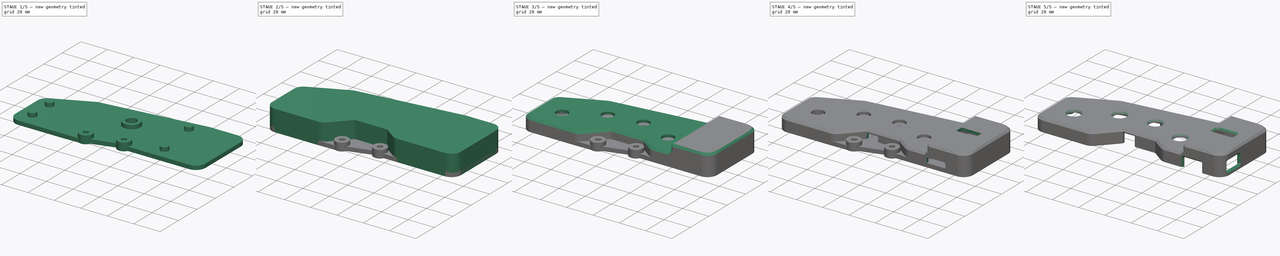
[diagram: build sequence overview — one tinted view per stage of 5, left to right]
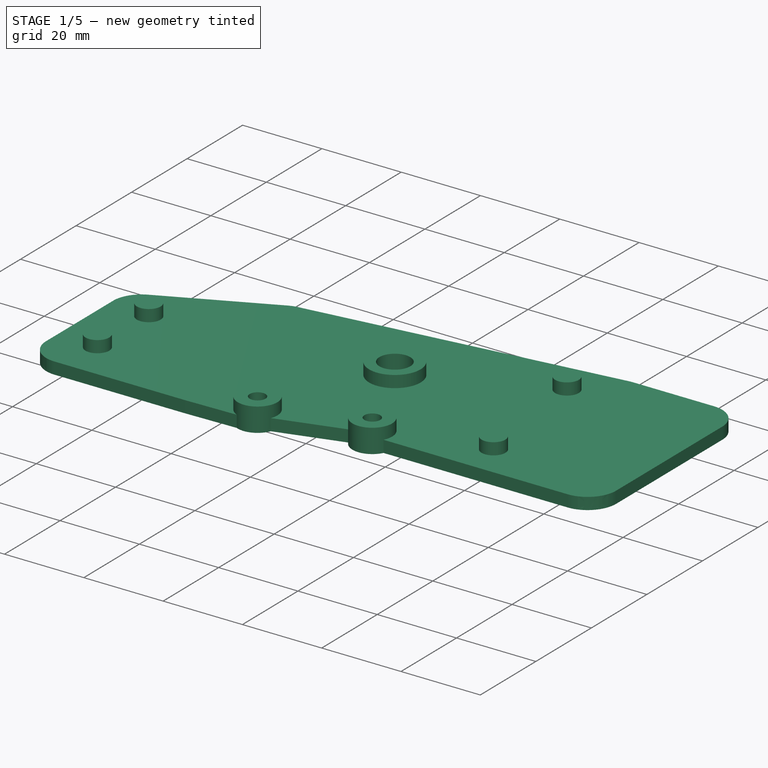
[diagram: stage 1 of 5 — iso view after this stage's code; geometry added in this stage tinted green]
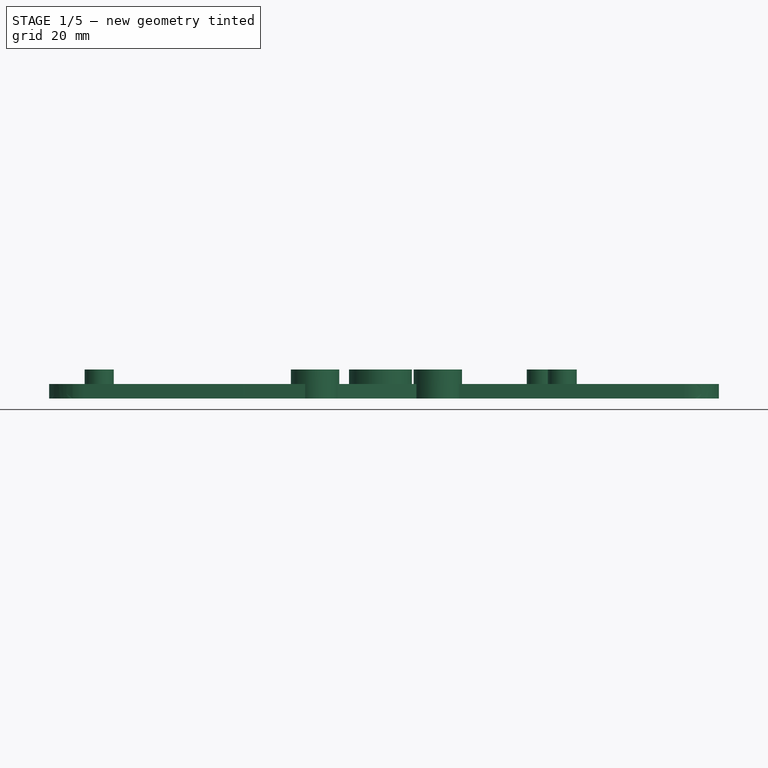
[diagram: stage 1 of 5 — front view after this stage's code; geometry added in this stage tinted green]
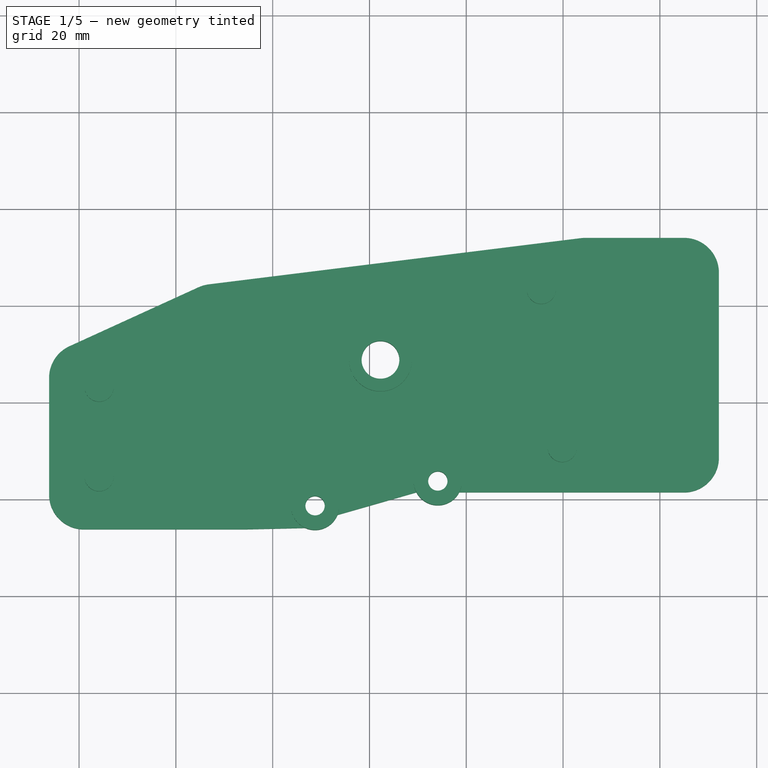
[diagram: stage 1 of 5 — top view after this stage's code; geometry added in this stage tinted green]
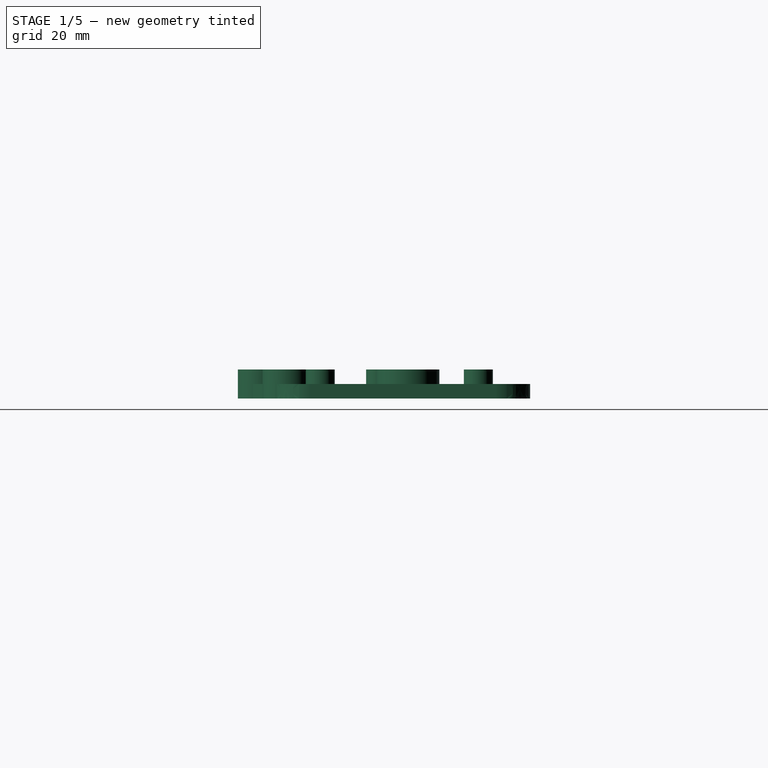
[diagram: stage 1 of 5 — right view after this stage's code; geometry added in this stage tinted green]
FCSTD DOCUMENT  (FreeCAD 1.0RUnknown)
Label: left
License: All rights reserved
LicenseURL: https://en.wikipedia.org/wiki/All_rights_reserved
objects: Part::Feature×103, App::Part×76, Sketcher::SketchObject×22, App::Link×22, PartDesign::Pocket×13, PartDesign::Pad×5, PartDesign::SubShapeBinder×4, PartDesign::Chamfer×3, PartDesign::Body×2, PartDesign::CoordinateSystem×1, PartDesign::ShapeBinder×1
note: 218 computed .brp shape members not serialized (recipe doc carries the construction recipe); baked Part::Feature solids carry a one-line shape summary decoded from their .brp

FEATURE [PartDesign::CoordinateSystem] Local_CS_f9e4
  AttacherType = Attacher::AttachEngine3D
  MapMode = 2
FEATURE [Part::Feature] Pcb_f9e4
  Placement = pos=(-19.5,107.85,0) rot=(0,0,1;0rad)
  shape: bbox 126 x 47.85 x 1.6 mm, 127 faces (baked)
FEATURE [Sketcher::SketchObject] PCB_Sketch_f9e4
  ArcFitTolerance = 1e-06
  FullyConstrained = false
  MakeInternals = false
  sketch-geometry (21):
    g0: LineSegment StartX=48.9342 StartY=15.25 StartZ=0 EndX=77.5946 EndY=15.25 EndZ=0
    g1: LineSegment StartX=27.2503 StartY=38.2054 StartZ=0 EndX=0.583058 EndY=26.0175 EndZ=0
    g2: LineSegment StartX=126 StartY=8.65 StartZ=0 EndX=126 EndY=45.95 EndZ=0
    g3: LineSegment StartX=9e-16 StartY=25.1085 StartZ=0 EndX=0 EndY=1 EndZ=0
    g4: LineSegment StartX=104.439 StartY=47.8424 StartZ=0 EndX=27.5489 EndY=38.289 EndZ=0
    g5: LineSegment StartX=34.5465 StartY=0.317255 StartZ=0 EndX=48.2035 EndY=14.9327 EndZ=0
    g6: LineSegment StartX=104.562 StartY=47.85 StartZ=0 EndX=125 EndY=47.85 EndZ=0
    g7: LineSegment StartX=125 StartY=7.65 StartZ=0 EndX=88.6266 EndY=7.65 EndZ=0
    g8: LineSegment StartX=1 StartY=1e-16 StartZ=0 EndX=33.8158 EndY=-1.6e-15 EndZ=0
    g9: LineSegment StartX=126 StartY=45.95 StartZ=0 EndX=126 EndY=46.85 EndZ=0
    g10: LineSegment StartX=78.291 StartY=14.9676 StartZ=0 EndX=88.0364 EndY=7.84274 EndZ=0
    g11: ArcOfCircle CenterX=27.666 CenterY=37.2959 CenterZ=0 NormalX=0 NormalY=0 NormalZ=-1 AngleXU=1.14211 Radius=1.00001 StartAngle=0 EndAngle=0.311303
    g12: ArcOfCircle CenterX=33.8158 CenterY=1.00002 CenterZ=0 NormalX=0 NormalY=0 NormalZ=-1 AngleXU=-2.39007 Radius=1.00002 StartAngle=0 EndAngle=0.81927
    g13: ArcOfCircle CenterX=48.9342 CenterY=14.25 CenterZ=0 NormalX=0 NormalY=0 NormalZ=-1 AngleXU=0.75152 Radius=1.00002 StartAngle=0 EndAngle=0.81927
    g14: ArcOfCircle CenterX=125 CenterY=46.85 CenterZ=0 NormalX=0 NormalY=0 NormalZ=-1 AngleXU=1.5708 Radius=0.999999 StartAngle=0 EndAngle=1.5708
    g15: ArcOfCircle CenterX=125 CenterY=8.65 CenterZ=0 NormalX=0 NormalY=0 NormalZ=-1 AngleXU=3.14159 Radius=0.999999 StartAngle=0 EndAngle=1.5708
    g16: ArcOfCircle CenterX=88.6266 CenterY=8.65 CenterZ=0 NormalX=0 NormalY=0 NormalZ=-1 AngleXU=-1.57079 Radius=1 StartAngle=0 EndAngle=0.631296
    g17: ArcOfCircle CenterX=104.562 CenterY=46.8498 CenterZ=0 NormalX=0 NormalY=0 NormalZ=-1 AngleXU=1.44719 Radius=1.00016 StartAngle=0 EndAngle=0.123594
    g18: ArcOfCircle CenterX=0.999999 CenterY=0.999999 CenterZ=0 NormalX=0 NormalY=0 NormalZ=-1 AngleXU=-1.5708 Radius=0.999999 StartAngle=0 EndAngle=1.5708
    g19: ArcOfCircle CenterX=1.00007 CenterY=25.1085 CenterZ=0 NormalX=0 NormalY=0 NormalZ=-1 AngleXU=4.52044e-05 Radius=1.00007 StartAngle=0 EndAngle=1.14063
    g20: ArcOfCircle CenterX=77.5946 CenterY=14.25 CenterZ=0 NormalX=0 NormalY=0 NormalZ=-1 AngleXU=1.57078 Radius=0.999961 StartAngle=0 EndAngle=0.770416
  constraints (21):
    c: Coincident(g3,g18)
    c: Coincident(g3,g19)
    c: Coincident(g1,g19)
    c: Coincident(g8,g18)
    c: Coincident(g1,g11)
    c: Coincident(g4,g11)
    c: Coincident(g8,g12)
    c: Coincident(g5,g12)
    c: Coincident(g5,g13)
    c: Coincident(g0,g13)
    c: Coincident(g0,g20)
    c: Coincident(g10,g20)
    c: Coincident(g10,g16)
    c: Coincident(g7,g16)
    c: Coincident(g4,g17)
    c: Coincident(g6,g17)
    c: Coincident(g7,g15)
    c: Coincident(g6,g14)
    c: Coincident(g2,g15)
    c: Coincident(g2,g9)
    c: Coincident(g9,g14)
FEATURE [App::Part] Board_Geoms_f9e4
  Group = -> [Pcb_f9e4,PCB_Sketch_f9e4]
  Origin = -> Origin
FEATURE [Part::Feature] Shape  label="J2_SOLID_a4e3e1318b99"
  Placement = pos=(105.5,10.35,0) rot=(1,0,0;1.5708rad)
  shape: bbox 4.001 x 3.601 x 0.9007 mm, 670 faces (baked)
FEATURE [Part::Feature] Shape001  label="D15_D_SOD_123_297b0f93f68c"
  Placement = pos=(66.6667,22.1833,0) rot=(0,0,1;2.35619rad)
  shape: bbox 3.147 x 3.147 x 1.25 mm, 67 faces (baked)
FEATURE [App::Link] D15_D_SOD_123_297b0f93f68c_ln_  label="D10_D_SOD_123_714711214fda"
  LinkPlacement = pos=(41.6667,19.1833,0) rot=(0,0,1;2.35619rad)
  LinkedObject = -> Shape001
  Placement = pos=(41.6667,19.1833,0) rot=(0,0,1;2.35619rad)
FEATURE [App::Link] D15_D_SOD_123_297b0f93f68c_ln_001  label="D17_D_SOD_123_faea6b368182"
  LinkPlacement = pos=(81.6667,25.1833,0) rot=(0,0,-1;0.785398rad)
  LinkedObject = -> Shape001
  Placement = pos=(81.6667,25.1833,0) rot=(0,0,-1;0.785398rad)
FEATURE [Part::Feature] Part__Feature  label="SKRHAD"
  shape: bbox 7.483 x 7.5 x 5.5 mm, 242 faces (baked)
FEATURE [Part::Feature] Part__Feature001  label="Pins"
  shape: bbox 1.15 x 0.8 x 0.1 mm, 6 faces (baked)
FEATURE [Part::Feature] Part__Feature002  label="Pins001"
  shape: bbox 1.15 x 0.8 x 0.1 mm, 6 faces (baked)
FEATURE [Part::Feature] Part__Feature003  label="Pins002"
  shape: bbox 1.15 x 0.8 x 0.1 mm, 6 faces (baked)
FEATURE [Part::Feature] Part__Feature004  label="Pins003"
  shape: bbox 1.15 x 0.8 x 0.1 mm, 6 faces (baked)
FEATURE [Part::Feature] Part__Feature005  label="Pins004"
  shape: bbox 1.15 x 0.8 x 0.1 mm, 6 faces (baked)
FEATURE [Part::Feature] Part__Feature006  label="Pins005"
  shape: bbox 1.15 x 0.8 x 0.1 mm, 6 faces (baked)
FEATURE [Part::Feature] Part__Feature007  label="Pins006"
  shape: bbox 1.64 x 1.44 x 0.1 mm, 6 faces (baked)
FEATURE [Part::Feature] Part__Feature008  label="Pins007"
  shape: bbox 1.64 x 1.44 x 0.1 mm, 6 faces (baked)
FEATURE [Part::Feature] Part__Feature009  label="Lugs"
  shape: bbox 0.55 x 0.55 x 1.8 mm, 3 faces (baked)
FEATURE [Part::Feature] Part__Feature010  label="Lugs001"
  shape: bbox 0.85 x 0.85 x 1.8 mm, 3 faces (baked)
FEATURE [App::Part] SKRHADE  label="S3_SKRHADE_5215085b8dd0"
  Group = -> [Part__Feature,Part__Feature001,Part__Feature002,Part__Feature003,Part__Feature004,Part__Feature005,Part__Feature006,Part__Feature007,Part__Feature008,Part__Feature009,Part__Feature010]
  Origin = -> Origin008
  Placement = pos=(62.25,28.75,0) rot=(0,0,-1;0.785398rad)
FEATURE [App::Link] D15_D_SOD_123_297b0f93f68c_ln_002  label="D2_D_SOD_123_90482f6a5b6f"
  LinkPlacement = pos=(7.16673,17.6833,0) rot=(0,0,-1;0.785398rad)
  LinkedObject = -> Shape001
  Placement = pos=(7.16673,17.6833,0) rot=(0,0,-1;0.785398rad)
FEATURE [Part::Feature] Part__Feature011  label="BOARD"
  shape: bbox 23.52 x 18.02 x 1.095 mm, 336 faces (baked)
FEATURE [Part::Feature] Part__Feature012  label="ANSCHL_X_FCSSE_009"
  shape: bbox 0.6 x 0.3041 x 0.3041 mm, 53 faces (baked)
FEATURE [Part::Feature] Part__Feature013  label="K_X_F6RPER_009"
  shape: bbox 0.3 x 0.28 x 0.28 mm, 10 faces (baked)
FEATURE [App::Part] USER_LIBRARY_V0201HD_ASM  label="USER_LIBRARY-V0201HD_ASM"
  Group = -> [Part__Feature012,Part__Feature013]
  Origin = -> Origin009
FEATURE [App::Part] R9_ASM
  Group = -> [USER_LIBRARY_V0201HD_ASM]
  Origin = -> Origin010
FEATURE [Part::Feature] Part__Feature014  label="ANSCHL_X_FCSSE_010"
  shape: bbox 0.6 x 0.3041 x 0.3041 mm, 53 faces (baked)
FEATURE [Part::Feature] Part__Feature015  label="K_X_F6RPER_010"
  shape: bbox 0.3 x 0.28 x 0.28 mm, 10 faces (baked)
FEATURE [App::Part] USER_LIBRARY_V0201HD_ASM001  label="USER_LIBRARY-V0201HD_ASM001"
  Group = -> [Part__Feature014,Part__Feature015]
  Origin = -> Origin011
FEATURE [App::Part] R5_ASM
  Group = -> [USER_LIBRARY_V0201HD_ASM001]
  Origin = -> Origin012
FEATURE [Part::Feature] Part__Feature016  label="EXTRUDED-32530"
  shape: bbox 1.8 x 1.5 x 1 mm, 6 faces (baked)
FEATURE [App::Part] _63420864_ASM  label="763420864_ASM"
  Group = -> [Part__Feature016]
  Origin = -> Origin013
FEATURE [App::Part] L1_ASM
  Group = -> [_63420864_ASM]
  Origin = -> Origin014
FEATURE [Part::Feature] Part__Feature017  label="USER_LIBRARY-CHIP_CAP_MLCC_0219"
  shape: bbox 0.6 x 0.3 x 0.3 mm, 44 faces (baked)
FEATURE [App::Part] C6_ASM
  Group = -> [Part__Feature017]
  Origin = -> Origin015
FEATURE [Part::Feature] Part__Feature018  label="USER_LIBRARY-CHIP_CAP_MLCC_0220"
  shape: bbox 0.6 x 0.3 x 0.3 mm, 44 faces (baked)
FEATURE [App::Part] C1_ASM
  Group = -> [Part__Feature018]
  Origin = -> Origin016
FEATURE [Part::Feature] Part__Feature019  label="USER_LIBRARY-CHIP_CAP_MLCC_0221"
  shape: bbox 0.6 x 0.3 x 0.3 mm, 44 faces (baked)
FEATURE [App::Part] C4_ASM
  Group = -> [Part__Feature019]
  Origin = -> Origin017
FEATURE [Part::Feature] Part__Feature020  label="USER_LIBRARY-CHIP_CAP_MLCC_0222"
  shape: bbox 0.6 x 0.3 x 0.3 mm, 44 faces (baked)
FEATURE [App::Part] C2_ASM
  Group = -> [Part__Feature020]
  Origin = -> Origin018
FEATURE [Part::Feature] Part__Feature021  label="EXTRUDED-36548"
  shape: bbox 3.1 x 3.95 x 1 mm, 6 faces (baked)
FEATURE [App::Part] _45553536_ASM  label="745553536_ASM"
  Group = -> [Part__Feature021]
  Origin = -> Origin019
FEATURE [App::Part] X1_ASM
  Group = -> [_45553536_ASM]
  Origin = -> Origin020
FEATURE [Part::Feature] Part__Feature022  label="USER_LIBRARY-RP2040_QFN56_04"
  shape: bbox 7.041 x 7.041 x 0.9009 mm, 1644 faces (baked)
FEATURE [App::Part] U3_ASM
  Group = -> [Part__Feature022]
  Origin = -> Origin021
FEATURE [Part::Feature] Part__Feature023  label="USER_LIBRARY-8MA3_1"
  shape: bbox 0.25 x 0.45 x 0.127 mm, 6 faces (baked)
FEATURE [Part::Feature] Part__Feature024  label="USER_LIBRARY-8MA3_2"
  shape: bbox 2 x 3.02 x 0.6 mm, 85 faces (baked)
FEATURE [App::Part] USER_LIBRARY_8MA3_ASM  label="USER_LIBRARY-8MA3_ASM"
  Group = -> [Part__Feature023,Part__Feature024]
  Origin = -> Origin022
FEATURE [App::Part] U2_ASM
  Group = -> [USER_LIBRARY_8MA3_ASM]
  Origin = -> Origin023
FEATURE [Part::Feature] Part__Feature025  label="EXTRUDED-175432"
  shape: bbox 2.983 x 1.424 x 0.655 mm, 6 faces (baked)
FEATURE [App::Part] _088560416_ASM  label="1088560416_ASM"
  Group = -> [Part__Feature025]
  Origin = -> Origin024
FEATURE [Part::Feature] Part__Feature026  label="EXTRUDED-175808"
  shape: bbox 0.4 x 1.168 x 0.16 mm, 6 faces (baked)
FEATURE [App::Part] _55905760_ASM  label="855905760_ASM"
  Group = -> [Part__Feature026]
  Origin = -> Origin025
FEATURE [Part::Feature] Part__Feature027  label="EXTRUDED-175809"
  shape: bbox 0.4 x 1.168 x 0.16 mm, 6 faces (baked)
FEATURE [App::Part] _55905760_ASM001  label="855905760_ASM001"
  Group = -> [Part__Feature027]
  Origin = -> Origin026
FEATURE [Part::Feature] Part__Feature028  label="EXTRUDED-175810"
  shape: bbox 0.4 x 1.168 x 0.16 mm, 6 faces (baked)
FEATURE [App::Part] _55905760_ASM002  label="855905760_ASM002"
  Group = -> [Part__Feature028]
  Origin = -> Origin027
FEATURE [Part::Feature] Part__Feature029  label="EXTRUDED-175811"
  shape: bbox 0.4 x 1.168 x 0.16 mm, 6 faces (baked)
FEATURE [App::Part] _55905760_ASM003  label="855905760_ASM003"
  Group = -> [Part__Feature029]
  Origin = -> Origin028
FEATURE [Part::Feature] Part__Feature030  label="EXTRUDED-175812"
  shape: bbox 0.4 x 1.168 x 0.16 mm, 6 faces (baked)
FEATURE [App::Part] _55905760_ASM004  label="855905760_ASM004"
  Group = -> [Part__Feature030]
  Origin = -> Origin029
FEATURE [App::Part] U1_ASM
  Group = -> [_088560416_ASM,_55905760_ASM,_55905760_ASM001,_55905760_ASM002,_55905760_ASM003,_55905760_ASM004]
  Origin = -> Origin030
FEATURE [Part::Feature] Part__Feature031  label="SOLID-176303"
  shape: bbox 7.051 x 8.341 x 3.561 mm, 1002 faces (baked)
FEATURE [Part::Feature] Part__Feature032  label="SOLID-266517"
  shape: bbox 0.87 x 0.265 x 1.45 mm, 14 faces (baked)
FEATURE [Part::Feature] Part__Feature033  label="SOLID-267632"
  shape: bbox 0.87 x 0.265 x 1.45 mm, 14 faces (baked)
FEATURE [Part::Feature] Part__Feature034  label="SOLID-268682"
  shape: bbox 0.87 x 0.25 x 1.45 mm, 16 faces (baked)
FEATURE [Part::Feature] Part__Feature035  label="SOLID-269938"
  shape: bbox 0.87 x 0.25 x 1.45 mm, 16 faces (baked)
FEATURE [Part::Feature] Part__Feature036  label="SOLID-271125"
  shape: bbox 6.58 x 0.25 x 2.03 mm, 28 faces (baked)
FEATURE [Part::Feature] Part__Feature037  label="SOLID-273528"
  shape: bbox 6.58 x 0.25 x 2.03 mm, 28 faces (baked)
FEATURE [Part::Feature] Part__Feature038  label="SOLID-275954"
  shape: bbox 6.58 x 0.25 x 1.57 mm, 27 faces (baked)
FEATURE [Part::Feature] Part__Feature039  label="SOLID-278237"
  shape: bbox 6.58 x 0.25 x 1.57 mm, 27 faces (baked)
FEATURE [Part::Feature] Part__Feature040  label="SOLID-280543"
  shape: bbox 5.71 x 0.25 x 0.24 mm, 15 faces (baked)
FEATURE [Part::Feature] Part__Feature041  label="SOLID-281855"
  shape: bbox 5.71 x 0.25 x 0.24 mm, 15 faces (baked)
FEATURE [Part::Feature] Part__Feature042  label="SOLID-283075"
  shape: bbox 7.13 x 0.85 x 1.589 mm, 39 faces (baked)
FEATURE [Part::Feature] Part__Feature043  label="SOLID-286630"
  shape: bbox 6.78 x 0.35 x 2.03 mm, 40 faces (baked)
FEATURE [Part::Feature] Part__Feature044  label="SOLID-290701"
  shape: bbox 5.91 x 0.35 x 0.24 mm, 27 faces (baked)
FEATURE [Part::Feature] Part__Feature045  label="SOLID-293585"
  shape: bbox 6.78 x 0.35 x 2.03 mm, 40 faces (baked)
FEATURE [Part::Feature] Part__Feature046  label="SOLID-297797"
  shape: bbox 5.91 x 0.35 x 0.24 mm, 27 faces (baked)
FEATURE [Part::Feature] Part__Feature047  label="SOLID-300887"
  shape: bbox 7.13 x 0.85 x 1.589 mm, 39 faces (baked)
FEATURE [Part::Feature] Part__Feature048  label="SOLID-304461"
  shape: bbox 4.21 x 0.25 x 0.24 mm, 16 faces (baked)
FEATURE [Part::Feature] Part__Feature049  label="SOLID-305782"
  shape: bbox 4.21 x 0.25 x 0.24 mm, 16 faces (baked)
FEATURE [Part::Feature] Part__Feature050  label="SOLID-307195"
  shape: bbox 7.13 x 1.115 x 2.03 mm, 55 faces (baked)
FEATURE [Part::Feature] Part__Feature051  label="SOLID-312211"
  shape: bbox 7.13 x 1.115 x 2.03 mm, 55 faces (baked)
FEATURE [Part::Feature] Part__Feature052  label="SOLID-317292"
  shape: bbox 7.53 x 9.58 x 4.16 mm, 436 faces (baked)
FEATURE [App::Part] _98B116_264_211_ASM  label="698B116-264-211_ASM"
  Group = -> [Part__Feature031,Part__Feature032,Part__Feature033,Part__Feature034,Part__Feature035,Part__Feature036,Part__Feature037,Part__Feature038,Part__Feature039,Part__Feature040,Part__Feature041,Part__Feature042,Part__Feature043,Part__Feature044,Part__Feature045,Part__Feature046,Part__Feature047,Part__Feature048,Part__Feature049,Part__Feature050,Part__Feature051,Part__Feature052]
  Origin = -> Origin031
FEATURE [App::Part] TYPE_C1_ASM
  Group = -> [_98B116_264_211_ASM]
  Origin = -> Origin032
FEATURE [Part::Feature] Part__Feature053  label="ANSCHL_X_FCSSE_011"
  shape: bbox 0.3041 x 0.6 x 0.3041 mm, 53 faces (baked)
FEATURE [Part::Feature] Part__Feature054  label="K_X_F6RPER_011"
  shape: bbox 0.28 x 0.3 x 0.28 mm, 10 faces (baked)
FEATURE [App::Part] USER_LIBRARY_V0201HD_ASM002  label="USER_LIBRARY-V0201HD_ASM002"
  Group = -> [Part__Feature053,Part__Feature054]
  Origin = -> Origin033
FEATURE [App::Part] R8_ASM
  Group = -> [USER_LIBRARY_V0201HD_ASM002]
  Origin = -> Origin034
FEATURE [Part::Feature] Part__Feature055  label="ANSCHL_X_FCSSE_012"
  shape: bbox 0.3041 x 0.6 x 0.3041 mm, 53 faces (baked)
FEATURE [Part::Feature] Part__Feature056  label="K_X_F6RPER_012"
  shape: bbox 0.28 x 0.3 x 0.28 mm, 10 faces (baked)
FEATURE [App::Part] USER_LIBRARY_V0201HD_ASM003  label="USER_LIBRARY-V0201HD_ASM003"
  Group = -> [Part__Feature055,Part__Feature056]
  Origin = -> Origin035
FEATURE [App::Part] R7_ASM
  Group = -> [USER_LIBRARY_V0201HD_ASM003]
  Origin = -> Origin036
FEATURE [Part::Feature] Part__Feature057  label="ANSCHL_X_FCSSE_013"
  shape: bbox 0.6 x 0.3041 x 0.3041 mm, 53 faces (baked)
FEATURE [Part::Feature] Part__Feature058  label="K_X_F6RPER_013"
  shape: bbox 0.3 x 0.28 x 0.28 mm, 10 faces (baked)
FEATURE [App::Part] USER_LIBRARY_V0201HD_ASM004  label="USER_LIBRARY-V0201HD_ASM004"
  Group = -> [Part__Feature057,Part__Feature058]
  Origin = -> Origin037
FEATURE [App::Part] R6_ASM
  Group = -> [USER_LIBRARY_V0201HD_ASM004]
  Origin = -> Origin038
FEATURE [Part::Feature] Part__Feature059  label="ANSCHL_X_FCSSE_014"
  shape: bbox 0.6 x 0.3041 x 0.3041 mm, 53 faces (baked)
FEATURE [Part::Feature] Part__Feature060  label="K_X_F6RPER_014"
  shape: bbox 0.3 x 0.28 x 0.28 mm, 10 faces (baked)
FEATURE [App::Part] USER_LIBRARY_V0201HD_ASM005  label="USER_LIBRARY-V0201HD_ASM005"
  Group = -> [Part__Feature059,Part__Feature060]
  Origin = -> Origin039
FEATURE [App::Part] R4_ASM
  Group = -> [USER_LIBRARY_V0201HD_ASM005]
  Origin = -> Origin040
FEATURE [Part::Feature] Part__Feature061  label="ANSCHL_X_FCSSE_015"
  shape: bbox 0.6 x 0.3041 x 0.3041 mm, 53 faces (baked)
FEATURE [Part::Feature] Part__Feature062  label="K_X_F6RPER_015"
  shape: bbox 0.3 x 0.28 x 0.28 mm, 10 faces (baked)
FEATURE [App::Part] USER_LIBRARY_V0201HD_ASM006  label="USER_LIBRARY-V0201HD_ASM006"
  Group = -> [Part__Feature061,Part__Feature062]
  Origin = -> Origin041
FEATURE [App::Part] R3_ASM
  Group = -> [USER_LIBRARY_V0201HD_ASM006]
  Origin = -> Origin042
FEATURE [Part::Feature] Part__Feature063  label="ANSCHL_X_FCSSE_016"
  shape: bbox 0.6 x 0.3041 x 0.3041 mm, 53 faces (baked)
FEATURE [Part::Feature] Part__Feature064  label="K_X_F6RPER_016"
  shape: bbox 0.3 x 0.28 x 0.28 mm, 10 faces (baked)
FEATURE [App::Part] USER_LIBRARY_V0201HD_ASM007  label="USER_LIBRARY-V0201HD_ASM007"
  Group = -> [Part__Feature063,Part__Feature064]
  Origin = -> Origin043
FEATURE [App::Part] R2_ASM
  Group = -> [USER_LIBRARY_V0201HD_ASM007]
  Origin = -> Origin044
FEATURE [Part::Feature] Part__Feature065  label="ANSCHL_X_FCSSE_017"
  shape: bbox 0.6 x 0.3041 x 0.3041 mm, 53 faces (baked)
FEATURE [Part::Feature] Part__Feature066  label="K_X_F6RPER_017"
  shape: bbox 0.3 x 0.28 x 0.28 mm, 10 faces (baked)
FEATURE [App::Part] USER_LIBRARY_V0201HD_ASM008  label="USER_LIBRARY-V0201HD_ASM008"
  Group = -> [Part__Feature065,Part__Feature066]
  Origin = -> Origin045
FEATURE [App::Part] R1_ASM
  Group = -> [USER_LIBRARY_V0201HD_ASM008]
  Origin = -> Origin046
FEATURE [Part::Feature] Part__Feature067  label="TS-1185EC-A-E-A-002"
  shape: bbox 4.65 x 3 x 2.5 mm, 137 faces (baked)
FEATURE [App::Part] KEY2_ASM
  Group = -> [Part__Feature067]
  Origin = -> Origin047
FEATURE [Part::Feature] Part__Feature068  label="TS-1185EC-A-E-A-003"
  shape: bbox 4.65 x 3 x 2.5 mm, 137 faces (baked)
FEATURE [App::Part] KEY1_ASM
  Group = -> [Part__Feature068]
  Origin = -> Origin048
FEATURE [Part::Feature] Part__Feature069  label="USER_LIBRARY-CHIP_CAP_MLCC_0223"
  shape: bbox 0.3 x 0.6 x 0.3 mm, 44 faces (baked)
FEATURE [App::Part] C18_ASM
  Group = -> [Part__Feature069]
  Origin = -> Origin049
FEATURE [Part::Feature] Part__Feature070  label="USER_LIBRARY-CHIP_CAP_MLCC_0224"
  shape: bbox 0.3 x 0.6 x 0.3 mm, 44 faces (baked)
FEATURE [App::Part] C19_ASM
  Group = -> [Part__Feature070]
  Origin = -> Origin050
FEATURE [Part::Feature] Part__Feature071  label="USER_LIBRARY-CHIP_CAP_MLCC_0225"
  shape: bbox 0.3 x 0.6 x 0.3 mm, 44 faces (baked)
FEATURE [App::Part] C17_ASM
  Group = -> [Part__Feature071]
  Origin = -> Origin051
FEATURE [Part::Feature] Part__Feature072  label="USER_LIBRARY-CHIP_CAP_MLCC_0226"
  shape: bbox 0.3 x 0.6 x 0.3 mm, 44 faces (baked)
FEATURE [App::Part] C16_ASM
  Group = -> [Part__Feature072]
  Origin = -> Origin052
FEATURE [Part::Feature] Part__Feature073  label="USER_LIBRARY-CHIP_CAP_MLCC_0227"
  shape: bbox 0.6 x 0.3 x 0.3 mm, 44 faces (baked)
FEATURE [App::Part] C15_ASM
  Group = -> [Part__Feature073]
  Origin = -> Origin053
FEATURE [Part::Feature] Part__Feature074  label="USER_LIBRARY-CHIP_CAP_MLCC_0228"
  shape: bbox 0.6 x 0.3 x 0.3 mm, 44 faces (baked)
FEATURE [App::Part] C14_ASM
  Group = -> [Part__Feature074]
  Origin = -> Origin054
FEATURE [Part::Feature] Part__Feature075  label="USER_LIBRARY-CHIP_CAP_MLCC_0229"
  shape: bbox 0.3 x 0.6 x 0.3 mm, 44 faces (baked)
FEATURE [App::Part] C13_ASM
  Group = -> [Part__Feature075]
  Origin = -> Origin055
FEATURE [Part::Feature] Part__Feature076  label="USER_LIBRARY-CHIP_CAP_MLCC_0230"
  shape: bbox 0.3 x 0.6 x 0.3 mm, 44 faces (baked)
FEATURE [App::Part] C12_ASM
  Group = -> [Part__Feature076]
  Origin = -> Origin056
FEATURE [Part::Feature] Part__Feature077  label="USER_LIBRARY-CHIP_CAP_MLCC_0231"
  shape: bbox 0.6 x 0.3 x 0.3 mm, 44 faces (baked)
FEATURE [App::Part] C11_ASM
  Group = -> [Part__Feature077]
  Origin = -> Origin057
FEATURE [Part::Feature] Part__Feature078  label="USER_LIBRARY-CHIP_CAP_MLCC_0232"
  shape: bbox 0.6 x 0.3 x 0.3 mm, 44 faces (baked)
FEATURE [App::Part] C10_ASM
  Group = -> [Part__Feature078]
  Origin = -> Origin058
FEATURE [Part::Feature] Part__Feature079  label="USER_LIBRARY-CHIP_CAP_MLCC_0233"
  shape: bbox 0.6 x 0.3 x 0.3 mm, 44 faces (baked)
FEATURE [App::Part] C9_ASM
  Group = -> [Part__Feature079]
  Origin = -> Origin059
FEATURE [Part::Feature] Part__Feature080  label="USER_LIBRARY-CHIP_CAP_MLCC_0234"
  shape: bbox 0.6 x 0.3 x 0.3 mm, 44 faces (baked)
FEATURE [App::Part] C8_ASM
  Group = -> [Part__Feature080]
  Origin = -> Origin060
FEATURE [Part::Feature] Part__Feature081  label="USER_LIBRARY-CHIP_CAP_MLCC_0235"
  shape: bbox 0.6 x 0.3 x 0.3 mm, 44 faces (baked)
FEATURE [App::Part] C7_ASM
  Group = -> [Part__Feature081]
  Origin = -> Origin061
FEATURE [Part::Feature] Part__Feature082  label="USER_LIBRARY-CHIP_CAP_MLCC_0236"
  shape: bbox 0.6 x 0.3 x 0.3 mm, 44 faces (baked)
FEATURE [App::Part] C5_ASM
  Group = -> [Part__Feature082]
  Origin = -> Origin062
FEATURE [Part::Feature] Part__Feature083  label="USER_LIBRARY-CHIP_CAP_MLCC_0237"
  shape: bbox 0.6 x 0.3 x 0.3 mm, 44 faces (baked)
FEATURE [App::Part] C3_ASM
  Group = -> [Part__Feature083]
  Origin = -> Origin063
FEATURE [Part::Feature] Part__Feature084  label="EXTRUDED-374547"
  shape: bbox 0.6096 x 1.011 x 0.01 mm, 6 faces (baked)
FEATURE [App::Part] _18705424_ASM  label="618705424_ASM"
  Group = -> [Part__Feature084]
  Origin = -> Origin064
FEATURE [Part::Feature] Part__Feature085  label="EXTRUDED-374548"
  shape: bbox 0.6096 x 1.011 x 0.01 mm, 6 faces (baked)
FEATURE [App::Part] _18705424_ASM001  label="618705424_ASM001"
  Group = -> [Part__Feature085]
  Origin = -> Origin065
FEATURE [Part::Feature] Part__Feature086  label="EXTRUDED-374549"
  shape: bbox 0.6096 x 1.011 x 0.01 mm, 6 faces (baked)
FEATURE [App::Part] _18705424_ASM002  label="618705424_ASM002"
  Group = -> [Part__Feature086]
  Origin = -> Origin066
FEATURE [Part::Feature] Part__Feature087  label="EXTRUDED-374550"
  shape: bbox 0.6096 x 1.011 x 0.01 mm, 6 faces (baked)
FEATURE [App::Part] _18705424_ASM003  label="618705424_ASM003"
  Group = -> [Part__Feature087]
  Origin = -> Origin067
FEATURE [Part::Feature] Part__Feature088  label="EXTRUDED-374551"
  shape: bbox 0.6096 x 1.011 x 0.01 mm, 6 faces (baked)
FEATURE [App::Part] _18705424_ASM004  label="618705424_ASM004"
  Group = -> [Part__Feature088]
  Origin = -> Origin068
FEATURE [Part::Feature] Part__Feature089  label="EXTRUDED-374552"
  shape: bbox 0.6096 x 1.011 x 0.01 mm, 6 faces (baked)
FEATURE [App::Part] _18705424_ASM005  label="618705424_ASM005"
  Group = -> [Part__Feature089]
  Origin = -> Origin069
FEATURE [Part::Feature] Part__Feature090  label="EXTRUDED-374553"
  shape: bbox 0.6096 x 1.011 x 0.01 mm, 6 faces (baked)
FEATURE [App::Part] _18705424_ASM006  label="618705424_ASM006"
  Group = -> [Part__Feature090]
  Origin = -> Origin070
FEATURE [Part::Feature] Part__Feature091  label="EXTRUDED-374554"
  shape: bbox 0.6096 x 1.011 x 0.01 mm, 6 faces (baked)
FEATURE [App::Part] _18705424_ASM007  label="618705424_ASM007"
  Group = -> [Part__Feature091]
  Origin = -> Origin071
FEATURE [Part::Feature] Part__Feature092  label="EXTRUDED-374555"
  shape: bbox 0.6096 x 1.011 x 0.01 mm, 6 faces (baked)
FEATURE [App::Part] _18705424_ASM008  label="618705424_ASM008"
  Group = -> [Part__Feature092]
  Origin = -> Origin072
FEATURE [Part::Feature] Part__Feature093  label="EXTRUDED-374556"
  shape: bbox 0.6096 x 1.011 x 0.01 mm, 6 faces (baked)
FEATURE [App::Part] _18705424_ASM009  label="618705424_ASM009"
  Group = -> [Part__Feature093]
  Origin = -> Origin073
FEATURE [App::Part] FREE_MODELS_ASM  label="FREE-MODELS_ASM"
  Group = -> [_18705424_ASM,_18705424_ASM001,_18705424_ASM002,_18705424_ASM003,_18705424_ASM004,_18705424_ASM005,_18705424_ASM006,_18705424_ASM007,_18705424_ASM008,_18705424_ASM009]
  Origin = -> Origin074
FEATURE [App::Part] PCB_ASM
  Group = -> [Part__Feature011,R9_ASM,R5_ASM,L1_ASM,C6_ASM,C1_ASM,C4_ASM,C2_ASM,X1_ASM,U3_ASM,U2_ASM,U1_ASM,TYPE_C1_ASM,R8_ASM,R7_ASM,R6_ASM,R4_ASM,R3_ASM,R2_ASM,R1_ASM,KEY2_ASM,KEY1_ASM,C18_ASM,C19_ASM,C17_ASM,C16_ASM,C15_ASM,C14_ASM,C13_ASM,C12_ASM,C11_ASM,C10_ASM,C9_ASM,C8_ASM,C7_ASM,C5_ASM,C3_ASM,FREE_MODELS_ASM]
  Origin = -> Origin075
FEATURE [App::Part] rp2040_zero_step  label="rp2040-zero.step"
  Group = -> [PCB_ASM]
  Origin = -> Origin076
FEATURE [Part::Feature] Part__Feature094  label="COMPOUND"
  shape: bbox 2.54 x 12.7 x 11.54 mm, 124 faces (baked)
FEATURE [Part::Feature] Part__Feature095  label="COMPOUND001"
  shape: bbox 22.86 x 2.54 x 11.54 mm, 220 faces (baked)
FEATURE [Part::Feature] Part__Feature096  label="COMPOUND002"
  shape: bbox 22.86 x 2.54 x 11.54 mm, 220 faces (baked)
FEATURE [App::Part] COMPOUND  label="COMPOUND003"
  Group = -> [Part__Feature094,Part__Feature095,Part__Feature096]
  Origin = -> Origin077
FEATURE [App::Part] root  label="U1_root_f15e9f1b0021"
  Group = -> [rp2040_zero_step,COMPOUND]
  Origin = -> Origin078
  Placement = pos=(113.5,35.65,0) rot=(0,0,1;1.5708rad)
FEATURE [App::Link] D15_D_SOD_123_297b0f93f68c_ln_003  label="D7_D_SOD_123_8db9657b6680"
  LinkPlacement = pos=(31.6667,31.1833,0) rot=(0,0,-1;0.785398rad)
  LinkedObject = -> Shape001
  Placement = pos=(31.6667,31.1833,0) rot=(0,0,-1;0.785398rad)
FEATURE [App::Link] D15_D_SOD_123_297b0f93f68c_ln_004  label="D6_D_SOD_123_5a9dd02e1f72"
  LinkPlacement = pos=(33.6667,33.1833,0) rot=(0,0,-1;0.785398rad)
  LinkedObject = -> Shape001
  Placement = pos=(33.6667,33.1833,0) rot=(0,0,-1;0.785398rad)
FEATURE [App::Link] D15_D_SOD_123_297b0f93f68c_ln_005  label="D18_D_SOD_123_574cc16e9dcf"
  LinkPlacement = pos=(79.6667,23.1833,0) rot=(0,0,-1;0.785398rad)
  LinkedObject = -> Shape001
  Placement = pos=(79.6667,23.1833,0) rot=(0,0,-1;0.785398rad)
FEATURE [App::Link] D15_D_SOD_123_297b0f93f68c_ln_006  label="D12_D_SOD_123_03f65f6962eb"
  LinkPlacement = pos=(57.1667,34.6833,0) rot=(0,0,-1;0.785398rad)
  LinkedObject = -> Shape001
  Placement = pos=(57.1667,34.6833,0) rot=(0,0,-1;0.785398rad)
FEATURE [App::Link] D15_D_SOD_123_297b0f93f68c_ln_007  label="D13_D_SOD_123_68cca99a2bda"
  LinkPlacement = pos=(55.3333,32.9167,0) rot=(0,0,-1;0.785398rad)
  LinkedObject = -> Shape001
  Placement = pos=(55.3333,32.9167,0) rot=(0,0,-1;0.785398rad)
FEATURE [Part::Feature] Shape002  label="J1_SOLID_b0f2eab6a2dc"
  Placement = pos=(55.5,17.65,0) rot=(1,0,0;1.5708rad)
  shape: bbox 7.501 x 3.601 x 0.9011 mm, 1232 faces (baked)
FEATURE [Part::Feature] Shape003  label="J5_SOLID_e3929a4f0cd1"
  Placement = pos=(112.01,10.525,0) rot=(1,0,0;1.5708rad)
  shape: bbox 5.501 x 4.001 x 0.9009 mm, 979 faces (baked)
FEATURE [App::Link] D15_D_SOD_123_297b0f93f68c_ln_008  label="D3_D_SOD_123_b363cf4a6d19"
  LinkPlacement = pos=(5.16673,15.6833,0) rot=(0,0,-1;0.785398rad)
  LinkedObject = -> Shape001
  Placement = pos=(5.16673,15.6833,0) rot=(0,0,-1;0.785398rad)
FEATURE [App::Link] D15_D_SOD_123_297b0f93f68c_ln_009  label="D16_D_SOD_123_570cb6eb1fcf"
  LinkPlacement = pos=(83.6667,27.1833,0) rot=(0,0,-1;0.785398rad)
  LinkedObject = -> Shape001
  Placement = pos=(83.6667,27.1833,0) rot=(0,0,-1;0.785398rad)
FEATURE [App::Link] D15_D_SOD_123_297b0f93f68c_ln_010  label="D26_D_SOD_123_aa0de055a14b"
  LinkPlacement = pos=(91.6667,13.1833,0) rot=(0,0,1;2.35619rad)
  LinkedObject = -> Shape001
  Placement = pos=(91.6667,13.1833,0) rot=(0,0,1;2.35619rad)
FEATURE [App::Link] D15_D_SOD_123_297b0f93f68c_ln_011  label="D1_D_SOD_123_6aad20c89427"
  LinkPlacement = pos=(9.16673,19.6833,0) rot=(0,0,-1;0.785398rad)
  LinkedObject = -> Shape001
  Placement = pos=(9.16673,19.6833,0) rot=(0,0,-1;0.785398rad)
FEATURE [Part::Feature] Shape004  label="USB1_HRO  TYPE-C-31-M-12 v4_db70bac645d1"
  Placement = pos=(126.669,9.53,0) rot=(0.57735,0.57735,0.57735;2.0944rad)
  shape: bbox 7.9 x 8.94 x 4.21 mm, 136 faces (baked)
FEATURE [App::Link] D15_D_SOD_123_297b0f93f68c_ln_012  label="D9_D_SOD_123_bd6e12bef637"
  LinkPlacement = pos=(43.6667,21.1833,0) rot=(0,0,1;2.35619rad)
  LinkedObject = -> Shape001
  Placement = pos=(43.6667,21.1833,0) rot=(0,0,1;2.35619rad)
FEATURE [App::Link] D15_D_SOD_123_297b0f93f68c_ln_013  label="D8_D_SOD_123_5098d857f11b"
  LinkPlacement = pos=(29.6667,29.1833,0) rot=(0,0,-1;0.785398rad)
  LinkedObject = -> Shape001
  Placement = pos=(29.6667,29.1833,0) rot=(0,0,-1;0.785398rad)
FEATURE [App::Link] D15_D_SOD_123_297b0f93f68c_ln_014  label="D5_D_SOD_123_f1829f0adbb3"
  LinkPlacement = pos=(16.6667,5.18327,0) rot=(0,0,1;2.35619rad)
  LinkedObject = -> Shape001
  Placement = pos=(16.6667,5.18327,0) rot=(0,0,1;2.35619rad)
FEATURE [App::Link] D15_D_SOD_123_297b0f93f68c_ln_015  label="D4_D_SOD_123_f278265b405c"
  LinkPlacement = pos=(18.6667,7.18327,0) rot=(0,0,1;2.35619rad)
  LinkedObject = -> Shape001
  Placement = pos=(18.6667,7.18327,0) rot=(0,0,1;2.35619rad)
FEATURE [App::Link] D15_D_SOD_123_297b0f93f68c_ln_016  label="D11_D_SOD_123_787581f2d295"
  LinkPlacement = pos=(59.1667,36.6833,0) rot=(0,0,-1;0.785398rad)
  LinkedObject = -> Shape001
  Placement = pos=(59.1667,36.6833,0) rot=(0,0,-1;0.785398rad)
FEATURE [App::Link] S3_SKRHADE_5215085b8dd0_ln_  label="S2_SKRHADE_2236dff1691e"
  LinkPlacement = pos=(37.25,25.74,0) rot=(0,0,-1;0.785398rad)
  LinkedObject = -> SKRHADE
  Placement = pos=(37.25,25.74,0) rot=(0,0,-1;0.785398rad)
FEATURE [App::Link] D15_D_SOD_123_297b0f93f68c_ln_017  label="D25_D_SOD_123_ac1acf6de5ef"
  LinkPlacement = pos=(93.6667,15.1833,0) rot=(0,0,1;2.35619rad)
  LinkedObject = -> Shape001
  Placement = pos=(93.6667,15.1833,0) rot=(0,0,1;2.35619rad)
FEATURE [App::Link] D15_D_SOD_123_297b0f93f68c_ln_018  label="D14_D_SOD_123_f154321c037e"
  LinkPlacement = pos=(68.6667,24.1833,0) rot=(0,0,1;2.35619rad)
  LinkedObject = -> Shape001
  Placement = pos=(68.6667,24.1833,0) rot=(0,0,1;2.35619rad)
FEATURE [App::Link] S3_SKRHADE_5215085b8dd0_ln_001  label="S1_SKRHADE_3311c38318ce"
  LinkPlacement = pos=(12.25,11.75,0) rot=(0,0,-1;0.785398rad)
  LinkedObject = -> SKRHADE
  Placement = pos=(12.25,11.75,0) rot=(0,0,-1;0.785398rad)
FEATURE [App::Link] S3_SKRHADE_5215085b8dd0_ln_002  label="S4_SKRHADE_947b82693a6f"
  LinkPlacement = pos=(87.25,19.75,0) rot=(0,0,-1;0.785398rad)
  LinkedObject = -> SKRHADE
  Placement = pos=(87.25,19.75,0) rot=(0,0,-1;0.785398rad)
FEATURE [App::Part] Top_f9e4
  Group = -> [Shape,Shape001,D15_D_SOD_123_297b0f93f68c_ln_,D15_D_SOD_123_297b0f93f68c_ln_001,SKRHADE,D15_D_SOD_123_297b0f93f68c_ln_002,root,D15_D_SOD_123_297b0f93f68c_ln_003,D15_D_SOD_123_297b0f93f68c_ln_004,D15_D_SOD_123_297b0f93f68c_ln_005,D15_D_SOD_123_297b0f93f68c_ln_006,D15_D_SOD_123_297b0f93f68c_ln_007,Shape002,Shape003,D15_D_SOD_123_297b0f93f68c_ln_008,D15_D_SOD_123_297b0f93f68c_ln_009,+13 more]
  Origin = -> Origin003
FEATURE [App::Part] Step_Models_f9e4
  Group = -> [Top_f9e4]
  Origin = -> Origin002
FEATURE [App::Part] Board_f9e4  label="left"
  Group = -> [Local_CS_f9e4,Board_Geoms_f9e4,Step_Models_f9e4]
  Origin = -> Origin001
FEATURE [Sketcher::SketchObject] PCB_Sketch_f9e006
  ArcFitTolerance = 1e-06
  FullyConstrained = false
  MakeInternals = false
  sketch-geometry (22):
    g0: LineSegment StartX=48.9342 StartY=15.25 StartZ=0 EndX=77.5946 EndY=15.25 EndZ=0
    g1: LineSegment StartX=27.2503 StartY=38.2054 StartZ=0 EndX=0.583058 EndY=26.0175 EndZ=0
    g2: LineSegment StartX=126 StartY=8.65 StartZ=0 EndX=126 EndY=45.95 EndZ=0
    g3: LineSegment StartX=9e-16 StartY=25.1085 StartZ=0 EndX=0 EndY=1 EndZ=0
    g4: LineSegment StartX=104.439 StartY=47.8424 StartZ=0 EndX=27.5489 EndY=38.289 EndZ=0
    g5: LineSegment StartX=34.5465 StartY=0.317255 StartZ=0 EndX=48.2035 EndY=14.9327 EndZ=0
    g6: LineSegment StartX=104.562 StartY=47.85 StartZ=0 EndX=125 EndY=47.85 EndZ=0
    g7: LineSegment StartX=125 StartY=7.65 StartZ=0 EndX=88.6266 EndY=7.65 EndZ=0
    g8: LineSegment StartX=1 StartY=1e-16 StartZ=0 EndX=33.8158 EndY=-1.6e-15 EndZ=0
    g9: LineSegment StartX=126 StartY=45.95 StartZ=0 EndX=126 EndY=46.85 EndZ=0
    g10: LineSegment StartX=78.291 StartY=14.9676 StartZ=0 EndX=88.0364 EndY=7.84274 EndZ=0
    g11: ArcOfCircle CenterX=27.666 CenterY=37.2959 CenterZ=0 NormalX=0 NormalY=0 NormalZ=-1 AngleXU=1.14211 Radius=1.00001 StartAngle=0 EndAngle=0.311303
    g12: ArcOfCircle CenterX=33.8158 CenterY=1.00002 CenterZ=0 NormalX=0 NormalY=0 NormalZ=-1 AngleXU=-2.39007 Radius=1.00002 StartAngle=0 EndAngle=0.81927
    g13: ArcOfCircle CenterX=48.9342 CenterY=14.25 CenterZ=0 NormalX=0 NormalY=0 NormalZ=-1 AngleXU=0.75152 Radius=1.00002 StartAngle=0 EndAngle=0.81927
    g14: ArcOfCircle CenterX=125 CenterY=46.85 CenterZ=0 NormalX=0 NormalY=0 NormalZ=-1 AngleXU=1.5708 Radius=0.999999 StartAngle=0 EndAngle=1.5708
    g15: ArcOfCircle CenterX=125 CenterY=8.65 CenterZ=0 NormalX=0 NormalY=0 NormalZ=-1 AngleXU=3.14159 Radius=0.999999 StartAngle=0 EndAngle=1.5708
    g16: ArcOfCircle CenterX=88.6266 CenterY=8.65 CenterZ=0 NormalX=0 NormalY=0 NormalZ=-1 AngleXU=-1.57079 Radius=1 StartAngle=0 EndAngle=0.631296
    g17: ArcOfCircle CenterX=104.562 CenterY=46.8498 CenterZ=0 NormalX=0 NormalY=0 NormalZ=-1 AngleXU=1.44719 Radius=1.00016 StartAngle=0 EndAngle=0.123594
    g18: ArcOfCircle CenterX=0.999999 CenterY=0.999999 CenterZ=0 NormalX=0 NormalY=0 NormalZ=-1 AngleXU=-1.5708 Radius=0.999999 StartAngle=0 EndAngle=1.5708
    g19: ArcOfCircle CenterX=1.00007 CenterY=25.1085 CenterZ=0 NormalX=0 NormalY=0 NormalZ=-1 AngleXU=4.52044e-05 Radius=1.00007 StartAngle=0 EndAngle=1.14063
    g20: ArcOfCircle CenterX=77.5946 CenterY=14.25 CenterZ=0 NormalX=0 NormalY=0 NormalZ=-1 AngleXU=1.57078 Radius=0.999961 StartAngle=0 EndAngle=0.770416
    g21: LineSegment StartX=62.3246 StartY=36.5794 StartZ=0 EndX=62.3246 EndY=19.5935 EndZ=0
  constraints (22):
    c: Coincident(g3,g18)
    c: Coincident(g3,g19)
    c: Coincident(g1,g19)
    c: Coincident(g8,g18)
    c: Coincident(g1,g11)
    c: Coincident(g4,g11)
    c: Coincident(g8,g12)
    c: Coincident(g5,g12)
    c: Coincident(g5,g13)
    c: Coincident(g0,g13)
    c: Coincident(g0,g20)
    c: Coincident(g10,g20)
    c: Coincident(g10,g16)
    c: Coincident(g7,g16)
    c: Coincident(g4,g17)
    c: Coincident(g6,g17)
    c: Coincident(g7,g15)
    c: Coincident(g6,g14)
    c: Coincident(g2,g15)
    c: Coincident(g2,g9)
    c: Coincident(g9,g14)
    c: Vertical(g21)
FEATURE [Sketcher::SketchObject] Sketch006  label="6.2"
  ArcFitTolerance = 1e-06
  FullyConstrained = false
  MakeInternals = false
  Placement = pos=(-1.26,49.11,0) rot=(0,0,1;0rad)
  sketch-geometry (20):
    g0: BSplineCurve PolesCount=4 KnotsCount=2 Degree=3 IsPeriodic=0
    g1: BSplineCurve PolesCount=2 KnotsCount=2 Degree=1 IsPeriodic=0
    g2: BSplineCurve PolesCount=4 KnotsCount=2 Degree=3 IsPeriodic=0
    g3: BSplineCurve PolesCount=4 KnotsCount=2 Degree=3 IsPeriodic=0
    g4: BSplineCurve PolesCount=2 KnotsCount=2 Degree=1 IsPeriodic=0
    g5: BSplineCurve PolesCount=4 KnotsCount=2 Degree=3 IsPeriodic=0
    g6: BSplineCurve PolesCount=2 KnotsCount=2 Degree=1 IsPeriodic=0
    g7: BSplineCurve PolesCount=4 KnotsCount=2 Degree=3 IsPeriodic=0
    g8: BSplineCurve PolesCount=2 KnotsCount=2 Degree=1 IsPeriodic=0
    g9: BSplineCurve PolesCount=4 KnotsCount=2 Degree=3 IsPeriodic=0
    g10: BSplineCurve PolesCount=2 KnotsCount=2 Degree=1 IsPeriodic=0
    g11: BSplineCurve PolesCount=2 KnotsCount=2 Degree=1 IsPeriodic=0
    g12: BSplineCurve PolesCount=2 KnotsCount=2 Degree=1 IsPeriodic=0
    g13: BSplineCurve PolesCount=4 KnotsCount=2 Degree=3 IsPeriodic=0
    g14: BSplineCurve PolesCount=2 KnotsCount=2 Degree=1 IsPeriodic=0
    g15: BSplineCurve PolesCount=4 KnotsCount=2 Degree=3 IsPeriodic=0
    g16: BSplineCurve PolesCount=2 KnotsCount=2 Degree=1 IsPeriodic=0
    g17: BSplineCurve PolesCount=2 KnotsCount=2 Degree=1 IsPeriodic=0
    g18: BSplineCurve PolesCount=4 KnotsCount=2 Degree=3 IsPeriodic=0
    g19: BSplineCurve PolesCount=2 KnotsCount=2 Degree=1 IsPeriodic=0
  constraints (20):
    c: Coincident(g0,g1)
    c: Coincident(g1,g2)
    c: Coincident(g2,g3)
    c: Coincident(g3,g4)
    c: Coincident(g4,g5)
    c: Coincident(g5,g6)
    c: Coincident(g6,g7)
    c: Coincident(g7,g8)
    c: Coincident(g8,g9)
    c: Coincident(g9,g10)
    c: Coincident(g10,g11)
    c: Coincident(g11,g12)
    c: Coincident(g12,g13)
    c: Coincident(g13,g14)
    c: Coincident(g14,g15)
    c: Coincident(g15,g16)
    c: Coincident(g16,g17)
    c: Coincident(g17,g18)
    c: Coincident(g18,g19)
    c: Coincident(g19,g0)
FEATURE [Sketcher::SketchObject] Sketch007  label="4.2"
  ArcFitTolerance = 1e-06
  FullyConstrained = false
  MakeInternals = false
  Placement = pos=(-1.26,-49.11,0) rot=(0,0,1;0rad)
  sketch-geometry (20):
    g0: BSplineCurve PolesCount=4 KnotsCount=2 Degree=3 IsPeriodic=0
    g1: BSplineCurve PolesCount=2 KnotsCount=2 Degree=1 IsPeriodic=0
    g2: BSplineCurve PolesCount=4 KnotsCount=2 Degree=3 IsPeriodic=0
    g3: BSplineCurve PolesCount=2 KnotsCount=2 Degree=1 IsPeriodic=0
    g4: BSplineCurve PolesCount=4 KnotsCount=2 Degree=3 IsPeriodic=0
    g5: BSplineCurve PolesCount=4 KnotsCount=2 Degree=3 IsPeriodic=0
    g6: BSplineCurve PolesCount=2 KnotsCount=2 Degree=1 IsPeriodic=0
    g7: BSplineCurve PolesCount=4 KnotsCount=2 Degree=3 IsPeriodic=0
    g8: BSplineCurve PolesCount=2 KnotsCount=2 Degree=1 IsPeriodic=0
    g9: BSplineCurve PolesCount=4 KnotsCount=2 Degree=3 IsPeriodic=0
    g10: BSplineCurve PolesCount=2 KnotsCount=2 Degree=1 IsPeriodic=0
    g11: BSplineCurve PolesCount=2 KnotsCount=2 Degree=1 IsPeriodic=0
    g12: BSplineCurve PolesCount=4 KnotsCount=2 Degree=3 IsPeriodic=0
    g13: BSplineCurve PolesCount=2 KnotsCount=2 Degree=1 IsPeriodic=0
    g14: BSplineCurve PolesCount=4 KnotsCount=2 Degree=3 IsPeriodic=0
    g15: BSplineCurve PolesCount=2 KnotsCount=2 Degree=1 IsPeriodic=0
    g16: BSplineCurve PolesCount=2 KnotsCount=2 Degree=1 IsPeriodic=0
    g17: BSplineCurve PolesCount=2 KnotsCount=2 Degree=1 IsPeriodic=0
    g18: BSplineCurve PolesCount=4 KnotsCount=2 Degree=3 IsPeriodic=0
    g19: BSplineCurve PolesCount=2 KnotsCount=2 Degree=1 IsPeriodic=0
  constraints (20):
    c: Coincident(g0,g1)
    c: Coincident(g1,g2)
    c: Coincident(g2,g3)
    c: Coincident(g3,g4)
    c: Coincident(g4,g5)
    c: Coincident(g5,g6)
    c: Coincident(g6,g7)
    c: Coincident(g7,g8)
    c: Coincident(g8,g9)
    c: Coincident(g9,g10)
    c: Coincident(g10,g11)
    c: Coincident(g11,g12)
    c: Coincident(g12,g13)
    c: Coincident(g13,g14)
    c: Coincident(g14,g15)
    c: Coincident(g15,g16)
    c: Coincident(g16,g17)
    c: Coincident(g17,g18)
    c: Coincident(g18,g19)
    c: Coincident(g19,g0)
FEATURE [Sketcher::SketchObject] Sketch008  label="6.003"
  ArcFitTolerance = 1e-06
  FullyConstrained = false
  MakeInternals = false
  Placement = pos=(-1.26,49.11,0) rot=(0,0,1;0rad)
  sketch-geometry (20):
    g0: BSplineCurve PolesCount=4 KnotsCount=2 Degree=3 IsPeriodic=0
    g1: BSplineCurve PolesCount=2 KnotsCount=2 Degree=1 IsPeriodic=0
    g2: BSplineCurve PolesCount=4 KnotsCount=2 Degree=3 IsPeriodic=0
    g3: BSplineCurve PolesCount=4 KnotsCount=2 Degree=3 IsPeriodic=0
    g4: BSplineCurve PolesCount=2 KnotsCount=2 Degree=1 IsPeriodic=0
    g5: BSplineCurve PolesCount=4 KnotsCount=2 Degree=3 IsPeriodic=0
    g6: BSplineCurve PolesCount=2 KnotsCount=2 Degree=1 IsPeriodic=0
    g7: BSplineCurve PolesCount=4 KnotsCount=2 Degree=3 IsPeriodic=0
    g8: BSplineCurve PolesCount=2 KnotsCount=2 Degree=1 IsPeriodic=0
    g9: BSplineCurve PolesCount=4 KnotsCount=2 Degree=3 IsPeriodic=0
    g10: BSplineCurve PolesCount=2 KnotsCount=2 Degree=1 IsPeriodic=0
    g11: BSplineCurve PolesCount=2 KnotsCount=2 Degree=1 IsPeriodic=0
    g12: BSplineCurve PolesCount=2 KnotsCount=2 Degree=1 IsPeriodic=0
    g13: BSplineCurve PolesCount=4 KnotsCount=2 Degree=3 IsPeriodic=0
    g14: BSplineCurve PolesCount=2 KnotsCount=2 Degree=1 IsPeriodic=0
    g15: BSplineCurve PolesCount=4 KnotsCount=2 Degree=3 IsPeriodic=0
    g16: BSplineCurve PolesCount=2 KnotsCount=2 Degree=1 IsPeriodic=0
    g17: BSplineCurve PolesCount=2 KnotsCount=2 Degree=1 IsPeriodic=0
    g18: BSplineCurve PolesCount=4 KnotsCount=2 Degree=3 IsPeriodic=0
    g19: BSplineCurve PolesCount=2 KnotsCount=2 Degree=1 IsPeriodic=0
  constraints (20):
    c: Coincident(g0,g1)
    c: Coincident(g1,g2)
    c: Coincident(g2,g3)
    c: Coincident(g3,g4)
    c: Coincident(g4,g5)
    c: Coincident(g5,g6)
    c: Coincident(g6,g7)
    c: Coincident(g7,g8)
    c: Coincident(g8,g9)
    c: Coincident(g9,g10)
    c: Coincident(g10,g11)
    c: Coincident(g11,g12)
    c: Coincident(g12,g13)
    c: Coincident(g13,g14)
    c: Coincident(g14,g15)
    c: Coincident(g15,g16)
    c: Coincident(g16,g17)
    c: Coincident(g17,g18)
    c: Coincident(g18,g19)
    c: Coincident(g19,g0)
FEATURE [PartDesign::Pad] Pad
  Direction = (0,0,1)
  Length = 3
  Length2 = 10
  Placement = pos=(-1.26,49.11,0) rot=(0,0,1;0rad)
  Profile = -> Sketch008
  ReferenceAxis = -> Sketch008 [N_Axis]
  Refine = true
  Suppressed = false
  Type = 0
FEATURE [Sketcher::SketchObject] Sketch011
  ArcFitTolerance = 1e-06
  AttachmentSupport = -> [XY_Plane083]
  ExternalGeometry = -> [Pad]
  FullyConstrained = false
  MakeInternals = false
  MapMode = 5
  sketch-geometry (8):
    g0: LineSegment StartX=103.768 StartY=1.44984 StartZ=0 EndX=103.768 EndY=10.9116 EndZ=0
    g1: LineSegment StartX=103.768 StartY=10.9116 StartZ=0 EndX=42.7463 EndY=10.9116 EndZ=0
    g2: ArcOfCircle CenterX=48.7566 CenterY=-1.349 CenterZ=0 NormalX=0 NormalY=0 NormalZ=1 AngleXU=0 Radius=5 StartAngle=4.28892 EndAngle=5.89866
    g3: ArcOfCircle CenterX=74.1219 CenterY=3.75859 CenterZ=0 NormalX=0 NormalY=0 NormalZ=1 AngleXU=0 Radius=5 StartAngle=3.62156 EndAngle=5.80322
    g4: LineSegment StartX=103.768 StartY=1.44984 StartZ=0 EndX=78.557 EndY=1.44984 EndZ=0
    g5: LineSegment StartX=69.6869 StartY=1.44984 StartZ=0 EndX=53.3915 EndY=-3.2246 EndZ=0
    g6: LineSegment StartX=33.8162 StartY=-6.19859 StartZ=0 EndX=46.702 EndY=-5.90734 EndZ=0
    g7: LineSegment StartX=33.8162 StartY=-6.19859 StartZ=0 EndX=42.7463 EndY=10.9116 EndZ=0
  constraints (17):
    c: Coincident(g0,g1)
    c: Vertical(g0)
    c: Horizontal(g1)
    c: PointOnObject(g0,g-3)
    c: Radius(g2) = 5
    c: Radius(g3) = 5
    c: Angle(g3) = 2.18166
    c: Coincident(g0,g4)
    c: Coincident(g4,g3)
    c: Horizontal(g4)
    c: Coincident(g5,g3)
    c: Coincident(g5,g2)
    c: Coincident(g6,g-4)
    c: Coincident(g6,g2)
    c: Coincident(g6,g7)
    c: Coincident(g7,g1)
    c: Horizontal(g3,g3)
FEATURE [PartDesign::Pad] Pad002
  BaseFeature = -> Pad
  Direction = (0,0,1)
  Length = 3
  Length2 = 10
  Placement = pos=(-1.26,49.11,0) rot=(0,0,1;0rad)
  Profile = -> Sketch011
  ReferenceAxis = -> Sketch011 [N_Axis]
  Refine = true
  Suppressed = false
  Type = 0
FEATURE [PartDesign::ShapeBinder] ShapeBinder
  Placement = pos=(-19.5,107.85,0) rot=(0,0,1;0rad)
  Support = -> [Pcb_f9e4]
  TraceSupport = false
FEATURE [Sketcher::SketchObject] Sketch
  ArcFitTolerance = 1e-06
  AttachmentSupport = -> [Pad002]
  ExternalGeometry = -> [ShapeBinder,Pad002]
  FullyConstrained = false
  MakeInternals = false
  MapMode = 5
  Placement = pos=(-1.26,49.11,3) rot=(0,0,1;0rad)
  sketch-geometry (7):
    g0: Circle CenterX=96.76 CenterY=-5.76 CenterZ=0 NormalX=0 NormalY=0 NormalZ=1 AngleXU=0 Radius=3
    g1: Circle CenterX=101.093 CenterY=-38.4267 CenterZ=0 NormalX=0 NormalY=0 NormalZ=1 AngleXU=0 Radius=3
    g2: Circle CenterX=5.41 CenterY=-25.9433 CenterZ=0 NormalX=0 NormalY=0 NormalZ=1 AngleXU=0 Radius=3
    g3: Circle CenterX=5.41 CenterY=-44.46 CenterZ=0 NormalX=0 NormalY=0 NormalZ=1 AngleXU=0 Radius=3
    g4: Circle CenterX=63.5318 CenterY=-20.3129 CenterZ=0 NormalX=0 NormalY=0 NormalZ=1 AngleXU=0 Radius=6.5
    g5: Circle CenterX=50.0166 CenterY=-50.459 CenterZ=0 NormalX=0 NormalY=0 NormalZ=1 AngleXU=0 Radius=5
    g6: Circle CenterX=75.3819 CenterY=-45.3514 CenterZ=0 NormalX=0 NormalY=0 NormalZ=1 AngleXU=0 Radius=5
  constraints (13):
    c: Diameter(g0) = 6
    c: Coincident(g0,g-3)
    c: Diameter(g1) = 6
    c: Coincident(g1,g-4)
    c: Diameter(g2) = 6
    c: Coincident(g2,g-5)
    c: Diameter(g3) = 6
    c: Coincident(g3,g-6)
    c: Diameter(g4) = 13
    c: Coincident(g5,g-8)
    c: Equal(g5,g-8)
    c: Coincident(g6,g-7)
    c: PointOnObject(g-7,g6)
FEATURE [PartDesign::Pad] Pad003
  BaseFeature = -> Pad002
  Direction = (0,0,1)
  Length = 3
  Length2 = 10
  Placement = pos=(-1.26,49.11,0) rot=(0,0,1;0rad)
  Profile = -> Sketch
  ReferenceAxis = -> Sketch [N_Axis]
  Refine = true
  Suppressed = false
  Type = 0
FEATURE [Sketcher::SketchObject] Sketch012
  ArcFitTolerance = 1e-06
  AttachmentSupport = -> [Pad003]
  ExternalGeometry = -> [Pad003]
  FullyConstrained = true
  MakeInternals = false
  MapMode = 5
  Placement = pos=(-1.26,49.11,6) rot=(0,0,1;0rad)
  sketch-geometry (3):
    g0: Circle CenterX=63.5318 CenterY=-20.3129 CenterZ=0 NormalX=0 NormalY=0 NormalZ=1 AngleXU=0 Radius=3.9
    g1: Circle CenterX=75.3819 CenterY=-45.3514 CenterZ=0 NormalX=0 NormalY=0 NormalZ=1 AngleXU=0 Radius=2
    g2: Circle CenterX=50.0166 CenterY=-50.459 CenterZ=0 NormalX=0 NormalY=0 NormalZ=1 AngleXU=0 Radius=2
  constraints (6):
    c: Diameter(g0) = 7.8
    c: Coincident(g0,g-3)
    c: Diameter(g1) = 4
    c: Coincident(g1,g-4)
    c: Diameter(g2) = 4
    c: Coincident(g2,g-5)
FEATURE [PartDesign::Pocket] Pocket001
  BaseFeature = -> Pad003
  Direction = (0,0,-1)
  Length = 5
  Length2 = 5
  Placement = pos=(-1.26,49.11,0) rot=(0,0,1;0rad)
  Profile = -> Sketch012
  ReferenceAxis = -> Sketch012 [N_Axis]
  Refine = true
  Suppressed = false
  Type = 1
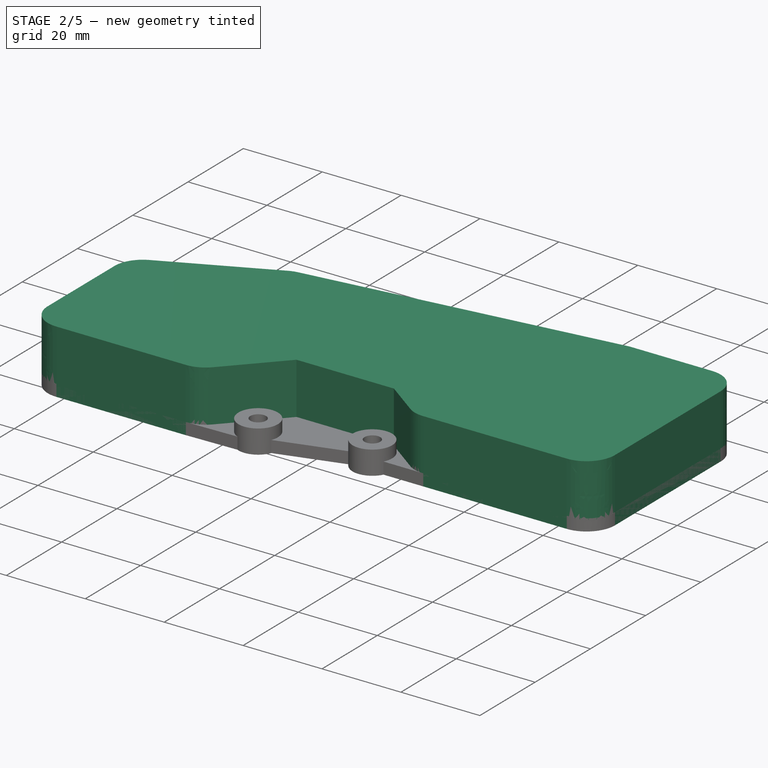
[diagram: stage 2 of 5 — iso view after this stage's code; geometry added in this stage tinted green]
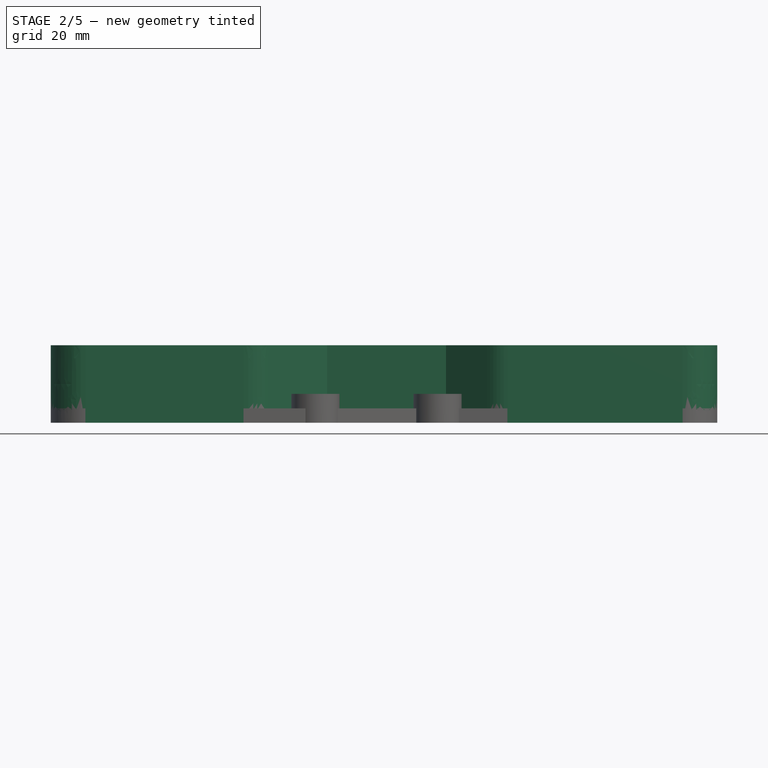
[diagram: stage 2 of 5 — front view after this stage's code; geometry added in this stage tinted green]
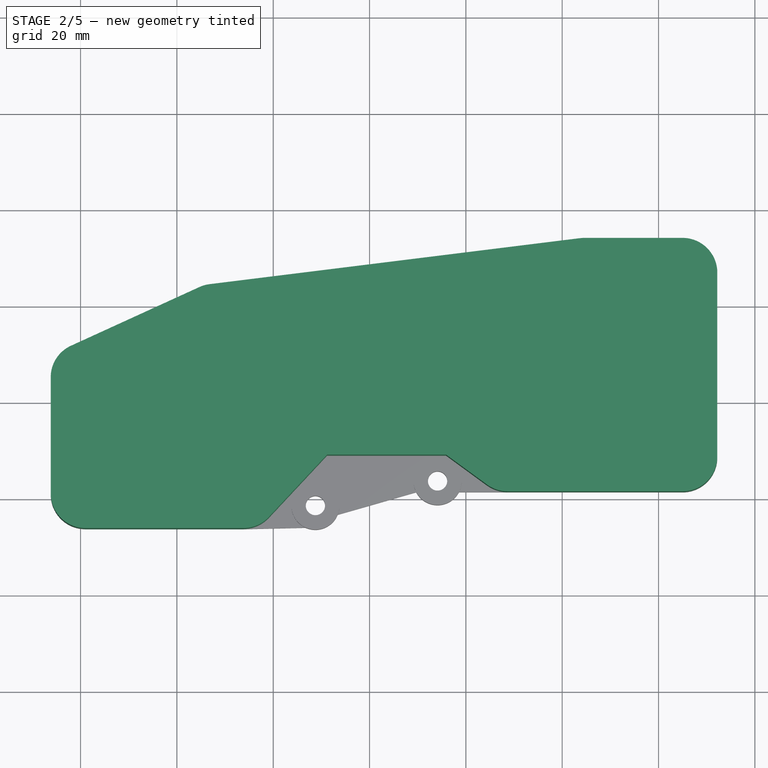
[diagram: stage 2 of 5 — top view after this stage's code; geometry added in this stage tinted green]
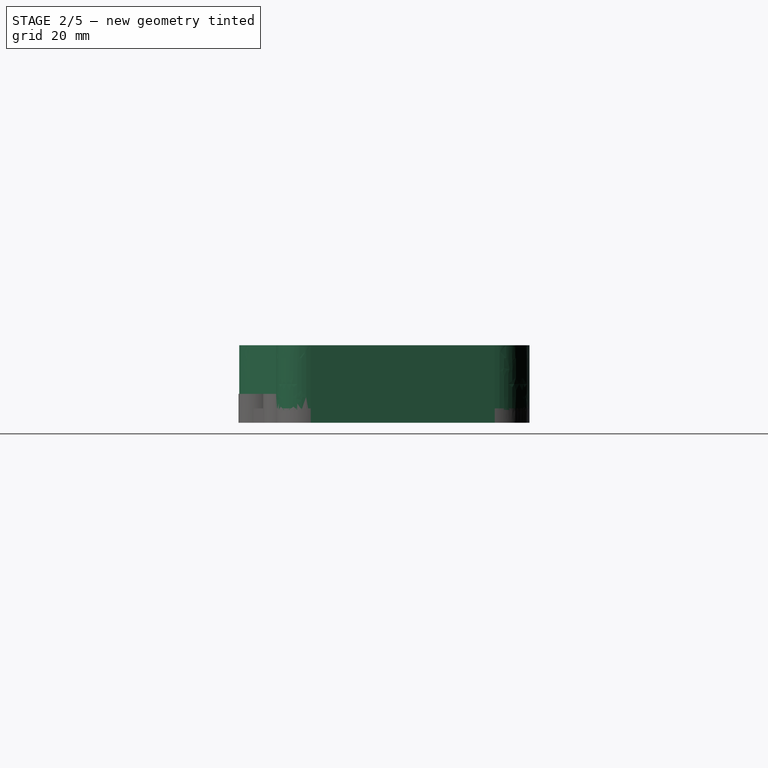
[diagram: stage 2 of 5 — right view after this stage's code; geometry added in this stage tinted green]
FEATURE [Sketcher::SketchObject] Sketch009  label="6.004"
  ArcFitTolerance = 1e-06
  FullyConstrained = false
  MakeInternals = false
  Placement = pos=(-1.26,49.11,0) rot=(0,0,1;0rad)
  sketch-geometry (20):
    g0: BSplineCurve PolesCount=4 KnotsCount=2 Degree=3 IsPeriodic=0
    g1: BSplineCurve PolesCount=2 KnotsCount=2 Degree=1 IsPeriodic=0
    g2: BSplineCurve PolesCount=4 KnotsCount=2 Degree=3 IsPeriodic=0
    g3: BSplineCurve PolesCount=4 KnotsCount=2 Degree=3 IsPeriodic=0
    g4: BSplineCurve PolesCount=2 KnotsCount=2 Degree=1 IsPeriodic=0
    g5: BSplineCurve PolesCount=4 KnotsCount=2 Degree=3 IsPeriodic=0
    g6: BSplineCurve PolesCount=2 KnotsCount=2 Degree=1 IsPeriodic=0
    g7: BSplineCurve PolesCount=4 KnotsCount=2 Degree=3 IsPeriodic=0
    g8: BSplineCurve PolesCount=2 KnotsCount=2 Degree=1 IsPeriodic=0
    g9: BSplineCurve PolesCount=4 KnotsCount=2 Degree=3 IsPeriodic=0
    g10: BSplineCurve PolesCount=2 KnotsCount=2 Degree=1 IsPeriodic=0
    g11: BSplineCurve PolesCount=2 KnotsCount=2 Degree=1 IsPeriodic=0
    g12: BSplineCurve PolesCount=2 KnotsCount=2 Degree=1 IsPeriodic=0
    g13: BSplineCurve PolesCount=4 KnotsCount=2 Degree=3 IsPeriodic=0
    g14: BSplineCurve PolesCount=2 KnotsCount=2 Degree=1 IsPeriodic=0
    g15: BSplineCurve PolesCount=4 KnotsCount=2 Degree=3 IsPeriodic=0
    g16: BSplineCurve PolesCount=2 KnotsCount=2 Degree=1 IsPeriodic=0
    g17: BSplineCurve PolesCount=2 KnotsCount=2 Degree=1 IsPeriodic=0
    g18: BSplineCurve PolesCount=4 KnotsCount=2 Degree=3 IsPeriodic=0
    g19: BSplineCurve PolesCount=2 KnotsCount=2 Degree=1 IsPeriodic=0
  constraints (20):
    c: Coincident(g0,g1)
    c: Coincident(g1,g2)
    c: Coincident(g2,g3)
    c: Coincident(g3,g4)
    c: Coincident(g4,g5)
    c: Coincident(g5,g6)
    c: Coincident(g6,g7)
    c: Coincident(g7,g8)
    c: Coincident(g8,g9)
    c: Coincident(g9,g10)
    c: Coincident(g10,g11)
    c: Coincident(g11,g12)
    c: Coincident(g12,g13)
    c: Coincident(g13,g14)
    c: Coincident(g14,g15)
    c: Coincident(g15,g16)
    c: Coincident(g16,g17)
    c: Coincident(g17,g18)
    c: Coincident(g18,g19)
    c: Coincident(g19,g0)
FEATURE [PartDesign::Pad] Pad001
  Direction = (0,0,1)
  Length = 16.1
  Length2 = 10
  Placement = pos=(-1.26,49.11,0) rot=(0,0,1;0rad)
  Profile = -> Sketch009
  ReferenceAxis = -> Sketch009 [N_Axis]
  Refine = true
  Suppressed = false
  Type = 0
FEATURE [Sketcher::SketchObject] Sketch013
  ArcFitTolerance = 1e-06
  AttachmentSupport = -> [Pocket001]
  ExternalGeometry = -> [Pocket001]
  FullyConstrained = true
  MakeInternals = false
  MapMode = 5
  Placement = pos=(-1.26,49.11,6) rot=(0,0,1;0rad)
  sketch-geometry (4):
    g0: Circle CenterX=5.41 CenterY=-25.9433 CenterZ=0 NormalX=0 NormalY=0 NormalZ=1 AngleXU=0 Radius=1.65
    g1: Circle CenterX=5.41 CenterY=-44.46 CenterZ=0 NormalX=0 NormalY=0 NormalZ=1 AngleXU=0 Radius=1.65
    g2: Circle CenterX=96.76 CenterY=-5.76 CenterZ=0 NormalX=0 NormalY=0 NormalZ=1 AngleXU=0 Radius=1.65
    g3: Circle CenterX=101.093 CenterY=-38.4267 CenterZ=0 NormalX=0 NormalY=0 NormalZ=1 AngleXU=0 Radius=1.65
  constraints (8):
    c: Diameter(g0) = 3.3
    c: Coincident(g0,g-3)
    c: Diameter(g1) = 3.3
    c: Coincident(g1,g-4)
    c: Diameter(g2) = 3.3
    c: Coincident(g2,g-5)
    c: Diameter(g3) = 3.3
    c: Coincident(g3,g-6)
FEATURE [PartDesign::Pocket] Pocket002
  BaseFeature = -> Pocket001
  Direction = (0,0,-1)
  Length = 3.3
  Length2 = 5
  Placement = pos=(-1.26,49.11,0) rot=(0,0,1;0rad)
  Profile = -> Sketch013
  ReferenceAxis = -> Sketch013 [N_Axis]
  Refine = true
  Suppressed = false
  Type = 0
FEATURE [Sketcher::SketchObject] Sketch014
  ArcFitTolerance = 1e-06
  AttachmentSupport = -> [Pocket002]
  FullyConstrained = false
  MakeInternals = false
  MapMode = 5
  Placement = pos=(-1.26,49.11,3) rot=(0,0,1;0rad)
  sketch-geometry (12):
    g0: Circle [constr] CenterX=-1.25 CenterY=-21.7456 CenterZ=0 NormalX=0 NormalY=0 NormalZ=1 AngleXU=0 Radius=3
    g1: Circle [constr] CenterX=-0.401351 CenterY=-51.3041 CenterZ=0 NormalX=0 NormalY=0 NormalZ=1 AngleXU=0 Radius=3
    g2: Circle [constr] CenterX=59.184 CenterY=-3.84518 CenterZ=0 NormalX=0 NormalY=0 NormalZ=1 AngleXU=0 Radius=3
    g3: Circle [constr] CenterX=70.6056 CenterY=-37.0515 CenterZ=0 NormalX=0 NormalY=0 NormalZ=1 AngleXU=0 Radius=3
    g4: Circle [constr] CenterX=127.04 CenterY=-44.5215 CenterZ=0 NormalX=0 NormalY=0 NormalZ=1 AngleXU=0 Radius=3
    g5: Circle [constr] CenterX=129.376 CenterY=0.445641 CenterZ=0 NormalX=0 NormalY=0 NormalZ=1 AngleXU=0 Radius=3
    g6: Circle CenterX=-1.25 CenterY=-21.7456 CenterZ=0 NormalX=0 NormalY=0 NormalZ=1 AngleXU=0 Radius=1.25
    g7: Circle CenterX=-0.401351 CenterY=-51.3041 CenterZ=0 NormalX=0 NormalY=0 NormalZ=1 AngleXU=0 Radius=1.25
    g8: Circle CenterX=70.6056 CenterY=-37.0515 CenterZ=0 NormalX=0 NormalY=0 NormalZ=1 AngleXU=0 Radius=1.25
    g9: Circle CenterX=127.04 CenterY=-44.5215 CenterZ=0 NormalX=0 NormalY=0 NormalZ=1 AngleXU=0 Radius=1.25
    g10: Circle CenterX=129.376 CenterY=0.445641 CenterZ=0 NormalX=0 NormalY=0 NormalZ=1 AngleXU=0 Radius=1.25
    g11: Circle CenterX=59.184 CenterY=-3.84518 CenterZ=0 NormalX=0 NormalY=0 NormalZ=1 AngleXU=0 Radius=1.25
  constraints (19):
    c: Diameter(g0) = 6
    c: Diameter(g1) = 6
    c: Diameter(g2) = 6
    c: Diameter(g3) = 6
    c: Diameter(g4) = 6
    c: Diameter(g5) = 6
    c: Diameter(g6) = 2.5
    c: Coincident(g6,g0)
    c: Tangent(g6,g-2)
    c: Diameter(g7) = 2.5
    c: Coincident(g7,g1)
    c: Diameter(g8) = 2.5
    c: Coincident(g8,g3)
    c: Diameter(g9) = 2.5
    c: Coincident(g9,g4)
    c: Diameter(g10) = 2.5
    c: Coincident(g10,g5)
    c: Diameter(g11) = 2.5
    c: Coincident(g11,g2)
FEATURE [PartDesign::Pocket] Pocket003
  BaseFeature = -> Pocket002
  Direction = (0,0,-1)
  Length = 5
  Length2 = 5
  Placement = pos=(-1.26,49.11,0) rot=(0,0,1;0rad)
  Profile = -> Sketch014
  ReferenceAxis = -> Sketch014 [N_Axis]
  Refine = true
  Suppressed = false
  Type = 1
FEATURE [PartDesign::Chamfer] Chamfer
  Angle = 60
  Base = -> Pocket003 [Edge44,Edge43,Edge40,Edge38,Edge36,Edge41]
  BaseFeature = -> Pocket003
  ChamferType = 2
  FlipDirection = false
  Placement = pos=(-1.26,49.11,0) rot=(0,0,1;0rad)
  Refine = true
  Size = 0.8
  Size2 = 1
  SupportTransform = false
  Suppressed = false
  UseAllEdges = false
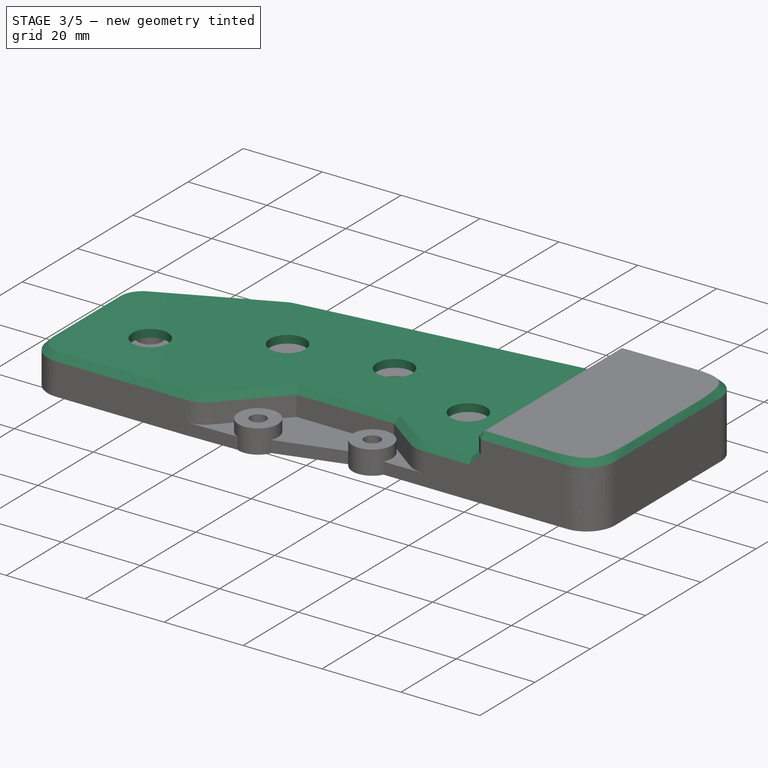
[diagram: stage 3 of 5 — iso view after this stage's code; geometry added in this stage tinted green]
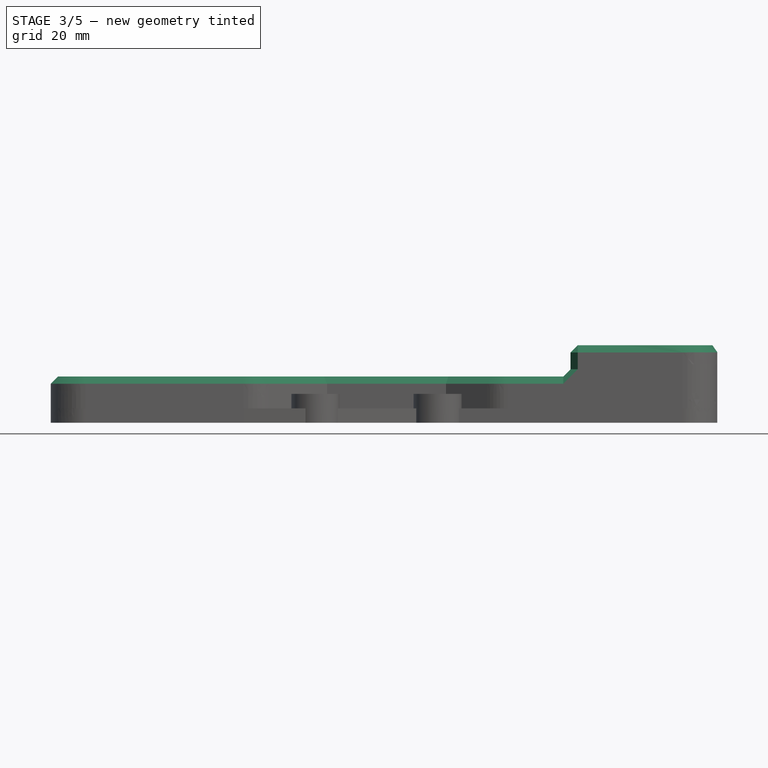
[diagram: stage 3 of 5 — front view after this stage's code; geometry added in this stage tinted green]
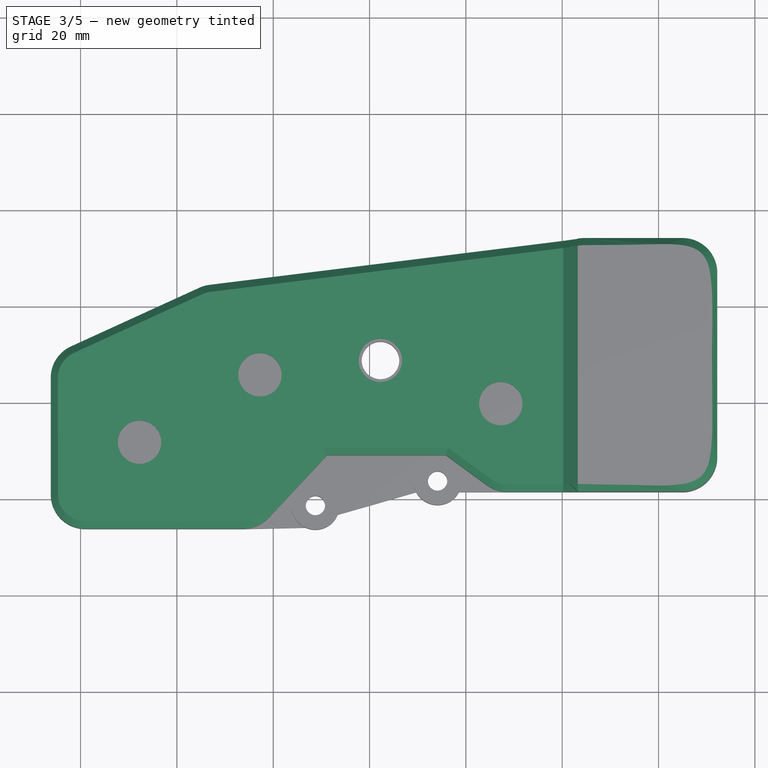
[diagram: stage 3 of 5 — top view after this stage's code; geometry added in this stage tinted green]
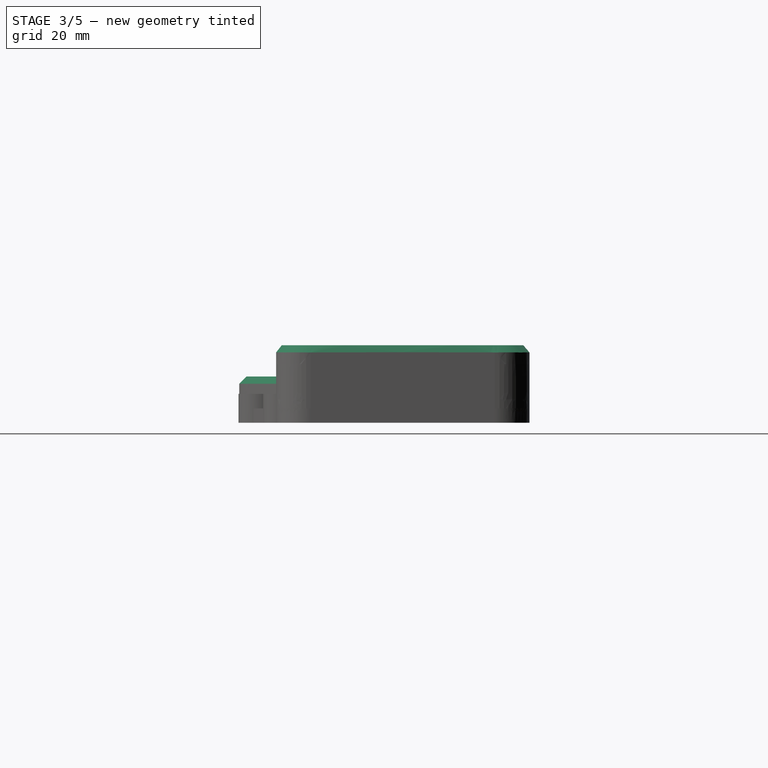
[diagram: stage 3 of 5 — right view after this stage's code; geometry added in this stage tinted green]
FEATURE [PartDesign::SubShapeBinder] Binder
  BindCopyOnChange = 0
  BindMode = 0
  ClaimChildren = false
  Context = -> Part001 [Body002.Binder.]
  Fuse = false
  MakeFace = true
  OffsetFill = false
  OffsetIntersection = false
  OffsetJoinType = 0
  OffsetOpenResult = false
  PartialLoad = false
  Refine = true
  Relative = true
  Support = -> <blob elided: 593 chars, md5=a7be3f0b>
  _Version = 2
FEATURE [PartDesign::SubShapeBinder] Binder001
  BindCopyOnChange = 0
  BindMode = 0
  ClaimChildren = false
  Context = -> Part001 [Body002.Binder001.]
  Fuse = false
  MakeFace = true
  OffsetFill = false
  OffsetIntersection = false
  OffsetJoinType = 0
  OffsetOpenResult = false
  PartialLoad = false
  Refine = true
  Relative = true
  Support = -> <blob elided: 593 chars, md5=a7be3f0b>
  _Version = 2
FEATURE [PartDesign::Body] Body002  label="base"
  AllowCompound = false
  Group = -> [Sketch008,Pad,Sketch011,Pad002,ShapeBinder,Sketch,Pad003,Sketch012,Pocket001,Sketch013,Pocket002,Sketch014,Pocket003,Chamfer,Binder,Binder001]
  Origin = -> Origin083
  Placement = pos=(0,0,-7.6) rot=(0,0,1;0rad)
  Tip = -> Chamfer
FEATURE [Sketcher::SketchObject] Sketch015
  ArcFitTolerance = 1e-06
  AttachmentSupport = -> [Pad001]
  FullyConstrained = false
  MakeInternals = false
  MapMode = 5
  Placement = pos=(-1.26,49.11,16.1) rot=(0,0,1;0rad)
  sketch-geometry (4):
    g0: LineSegment StartX=102.983 StartY=11.7693 StartZ=0 EndX=-8.78804 EndY=11.7693 EndZ=0
    g1: LineSegment StartX=-8.78804 StartY=11.7693 StartZ=0 EndX=-8.78804 EndY=-58.2329 EndZ=0
    g2: LineSegment StartX=-8.78804 StartY=-58.2329 StartZ=0 EndX=102.983 EndY=-58.2329 EndZ=0
    g3: LineSegment StartX=102.983 StartY=-58.2329 StartZ=0 EndX=102.983 EndY=11.7693 EndZ=0
  constraints (8):
    c: Coincident(g0,g1)
    c: Coincident(g1,g2)
    c: Coincident(g2,g3)
    c: Coincident(g3,g0)
    c: Horizontal(g0)
    c: Horizontal(g2)
    c: Vertical(g1)
    c: Vertical(g3)
FEATURE [PartDesign::Pocket] Pocket
  BaseFeature = -> Pad001
  Direction = (0,0,-1)
  Length = 6.5
  Length2 = 5
  Placement = pos=(-1.26,49.11,0) rot=(0,0,1;0rad)
  Profile = -> Sketch015
  ReferenceAxis = -> Sketch015 [N_Axis]
  Refine = true
  Suppressed = false
  Type = 0
FEATURE [Sketcher::SketchObject] Sketch016  label="4.003"
  ArcFitTolerance = 1e-06
  FullyConstrained = false
  MakeInternals = false
  Placement = pos=(-1.26,-49.11,0) rot=(0,0,1;0rad)
  sketch-geometry (20):
    g0: BSplineCurve PolesCount=4 KnotsCount=2 Degree=3 IsPeriodic=0
    g1: BSplineCurve PolesCount=2 KnotsCount=2 Degree=1 IsPeriodic=0
    g2: BSplineCurve PolesCount=4 KnotsCount=2 Degree=3 IsPeriodic=0
    g3: BSplineCurve PolesCount=2 KnotsCount=2 Degree=1 IsPeriodic=0
    g4: BSplineCurve PolesCount=4 KnotsCount=2 Degree=3 IsPeriodic=0
    g5: BSplineCurve PolesCount=4 KnotsCount=2 Degree=3 IsPeriodic=0
    g6: BSplineCurve PolesCount=2 KnotsCount=2 Degree=1 IsPeriodic=0
    g7: BSplineCurve PolesCount=4 KnotsCount=2 Degree=3 IsPeriodic=0
    g8: BSplineCurve PolesCount=2 KnotsCount=2 Degree=1 IsPeriodic=0
    g9: BSplineCurve PolesCount=4 KnotsCount=2 Degree=3 IsPeriodic=0
    g10: BSplineCurve PolesCount=2 KnotsCount=2 Degree=1 IsPeriodic=0
    g11: BSplineCurve PolesCount=2 KnotsCount=2 Degree=1 IsPeriodic=0
    g12: BSplineCurve PolesCount=4 KnotsCount=2 Degree=3 IsPeriodic=0
    g13: BSplineCurve PolesCount=2 KnotsCount=2 Degree=1 IsPeriodic=0
    g14: BSplineCurve PolesCount=4 KnotsCount=2 Degree=3 IsPeriodic=0
    g15: BSplineCurve PolesCount=2 KnotsCount=2 Degree=1 IsPeriodic=0
    g16: BSplineCurve PolesCount=2 KnotsCount=2 Degree=1 IsPeriodic=0
    g17: BSplineCurve PolesCount=2 KnotsCount=2 Degree=1 IsPeriodic=0
    g18: BSplineCurve PolesCount=4 KnotsCount=2 Degree=3 IsPeriodic=0
    g19: BSplineCurve PolesCount=2 KnotsCount=2 Degree=1 IsPeriodic=0
  constraints (20):
    c: Coincident(g0,g1)
    c: Coincident(g1,g2)
    c: Coincident(g2,g3)
    c: Coincident(g3,g4)
    c: Coincident(g4,g5)
    c: Coincident(g5,g6)
    c: Coincident(g6,g7)
    c: Coincident(g7,g8)
    c: Coincident(g8,g9)
    c: Coincident(g9,g10)
    c: Coincident(g10,g11)
    c: Coincident(g11,g12)
    c: Coincident(g12,g13)
    c: Coincident(g13,g14)
    c: Coincident(g14,g15)
    c: Coincident(g15,g16)
    c: Coincident(g16,g17)
    c: Coincident(g17,g18)
    c: Coincident(g18,g19)
    c: Coincident(g19,g0)
FEATURE [PartDesign::Pocket] Pocket004
  BaseFeature = -> Pocket
  Direction = (0,0,-1)
  Length = 7.6
  Length2 = 5
  Placement = pos=(-1.26,49.11,0) rot=(0,0,1;0rad)
  Profile = -> Sketch016
  ReferenceAxis = -> Sketch016 [N_Axis]
  Refine = true
  Reversed = true
  Suppressed = false
  Type = 0
FEATURE [Sketcher::SketchObject] Sketch017  label="4.004"
  ArcFitTolerance = 1e-06
  ExternalGeometry = -> [Pocket004,Sketch016]
  FullyConstrained = false
  MakeInternals = false
  Placement = pos=(-1.26,-49.11,0) rot=(0,0,1;0rad)
  sketch-geometry (9):
    g0: BSplineCurve PolesCount=4 KnotsCount=2 Degree=3 IsPeriodic=0
    g1: BSplineCurve PolesCount=2 KnotsCount=2 Degree=1 IsPeriodic=0
    g2: BSplineCurve PolesCount=4 KnotsCount=2 Degree=3 IsPeriodic=0
    g3: BSplineCurve PolesCount=2 KnotsCount=2 Degree=1 IsPeriodic=0
    g4: BSplineCurve PolesCount=2 KnotsCount=2 Degree=1 IsPeriodic=0
    g5: BSplineCurve PolesCount=4 KnotsCount=2 Degree=3 IsPeriodic=0
    g6: LineSegment StartX=104.983 StartY=101.095 StartZ=0 EndX=104.983 EndY=52.5612 EndZ=0
    g7: LineSegment StartX=104.983 StartY=101.095 StartZ=0 EndX=105.182 EndY=101.12 EndZ=0
    g8: LineSegment StartX=104.983 StartY=52.5612 StartZ=0 EndX=126.26 EndY=52.5612 EndZ=0
  constraints (15):
    c: Coincident(g0,g1)
    c: Coincident(g1,g2)
    c: Coincident(g2,g3)
    c: Coincident(g3,g4)
    c: Coincident(g4,g5)
    c: Vertical(g6)
    c: Coincident(g6,g7)
    c: Coincident(g7,g0)
    c: Coincident(g6,g8)
    c: Coincident(g8,g5)
    c: Horizontal(g8)
    c: PointOnObject(g6,g-5)
    c: PointOnObject(g6,g-4)
    c: Distance(g-3,g6) = 2
    c: Coincident(g0,g-5)
FEATURE [PartDesign::Pocket] Pocket005
  BaseFeature = -> Pocket004
  Direction = (0,0,-1)
  Length = 14.1
  Length2 = 5
  Placement = pos=(-1.26,49.11,0) rot=(0,0,1;0rad)
  Profile = -> Sketch017
  ReferenceAxis = -> Sketch017 [N_Axis]
  Refine = true
  Reversed = true
  Suppressed = false
  Type = 0
FEATURE [PartDesign::SubShapeBinder] Binder002
  BindCopyOnChange = 0
  BindMode = 0
  ClaimChildren = false
  Context = -> Part001 [Body.Binder002.]
  Fuse = false
  MakeFace = true
  OffsetFill = false
  OffsetIntersection = false
  OffsetJoinType = 0
  OffsetOpenResult = false
  PartialLoad = false
  Refine = true
  Relative = true
  Support = -> <blob elided: 593 chars, md5=a7be3f0b>
  _Version = 2
FEATURE [PartDesign::Chamfer] Chamfer001
  Angle = 45
  Base = -> Pocket005 [Face8,Face9,Face5]
  BaseFeature = -> Pocket005
  ChamferType = 0
  FlipDirection = false
  Placement = pos=(-1.26,49.11,0) rot=(0,0,1;0rad)
  Refine = true
  Size = 1.5
  Size2 = 1
  SupportTransform = false
  Suppressed = false
  UseAllEdges = false
FEATURE [Sketcher::SketchObject] Sketch018
  ArcFitTolerance = 1e-06
  AttachmentSupport = -> [Chamfer001]
  ExternalGeometry = -> [Binder002]
  FullyConstrained = true
  MakeInternals = false
  MapMode = 5
  Placement = pos=(-1.26,49.11,9.6) rot=(0,0,1;0rad)
  sketch-geometry (20):
    g0: LineSegment [constr] StartX=13.51 StartY=-36.485 StartZ=0 EndX=13.51 EndY=-37.36 EndZ=0
    g1: LineSegment [constr] StartX=13.51 StartY=-37.36 StartZ=0 EndX=14.385 EndY=-37.36 EndZ=0
    g2: LineSegment [constr] StartX=14.385 StartY=-37.36 StartZ=0 EndX=14.385 EndY=-36.485 EndZ=0
    g3: LineSegment [constr] StartX=14.385 StartY=-36.485 StartZ=0 EndX=13.51 EndY=-36.485 EndZ=0
    g4: LineSegment [constr] StartX=38.51 StartY=-22.495 StartZ=0 EndX=38.51 EndY=-23.37 EndZ=0
    g5: LineSegment [constr] StartX=38.51 StartY=-23.37 StartZ=0 EndX=39.385 EndY=-23.37 EndZ=0
    g6: LineSegment [constr] StartX=39.385 StartY=-23.37 StartZ=0 EndX=39.385 EndY=-22.495 EndZ=0
    g7: LineSegment [constr] StartX=39.385 StartY=-22.495 StartZ=0 EndX=38.51 EndY=-22.495 EndZ=0
    g8: LineSegment [constr] StartX=63.51 StartY=-19.485 StartZ=0 EndX=63.51 EndY=-20.36 EndZ=0
    g9: LineSegment [constr] StartX=63.51 StartY=-20.36 StartZ=0 EndX=64.385 EndY=-20.36 EndZ=0
    g10: LineSegment [constr] StartX=64.385 StartY=-20.36 StartZ=0 EndX=64.385 EndY=-19.485 EndZ=0
    g11: LineSegment [constr] StartX=64.385 StartY=-19.485 StartZ=0 EndX=63.51 EndY=-19.485 EndZ=0
    g12: LineSegment [constr] StartX=88.51 StartY=-28.485 StartZ=0 EndX=88.51 EndY=-29.36 EndZ=0
    g13: LineSegment [constr] StartX=88.51 StartY=-29.36 StartZ=0 EndX=89.385 EndY=-29.36 EndZ=0
    g14: LineSegment [constr] StartX=89.385 StartY=-29.36 StartZ=0 EndX=89.385 EndY=-28.485 EndZ=0
    g15: LineSegment [constr] StartX=89.385 StartY=-28.485 StartZ=0 EndX=88.51 EndY=-28.485 EndZ=0
    g16: Circle CenterX=88.51 CenterY=-29.36 CenterZ=0 NormalX=0 NormalY=0 NormalZ=1 AngleXU=0 Radius=4.5
    g17: Circle CenterX=63.51 CenterY=-20.36 CenterZ=0 NormalX=0 NormalY=0 NormalZ=1 AngleXU=0 Radius=4.5
    g18: Circle CenterX=38.51 CenterY=-23.37 CenterZ=0 NormalX=0 NormalY=0 NormalZ=1 AngleXU=0 Radius=4.5
    g19: Circle CenterX=13.51 CenterY=-37.36 CenterZ=0 NormalX=0 NormalY=0 NormalZ=1 AngleXU=0 Radius=4.5
  constraints (48):
    c: Coincident(g0,g1)
    c: Coincident(g1,g2)
    c: Coincident(g2,g3)
    c: Coincident(g3,g0)
    c: Vertical(g0)
    c: Vertical(g2)
    c: Horizontal(g1)
    c: Horizontal(g3)
    c: Symmetric(g-3,g-3,g0)
    c: Symmetric(g-4,g-4,g1)
    c: Coincident(g4,g5)
    c: Coincident(g5,g6)
    c: Coincident(g6,g7)
    c: Coincident(g7,g4)
    c: Vertical(g4)
    c: Vertical(g6)
    c: Horizontal(g5)
    c: Horizontal(g7)
    c: Symmetric(g-5,g-5,g4)
    c: Symmetric(g-6,g-6,g5)
    c: Coincident(g8,g9)
    c: Coincident(g9,g10)
    c: Coincident(g10,g11)
    c: Coincident(g11,g8)
    c: Vertical(g8)
    c: Vertical(g10)
    c: Horizontal(g9)
    c: Horizontal(g11)
    c: Symmetric(g-7,g-7,g8)
    c: Symmetric(g-8,g-8,g9)
    c: Coincident(g12,g13)
    c: Coincident(g13,g14)
    c: Coincident(g14,g15)
    c: Coincident(g15,g12)
    c: Vertical(g12)
    c: Vertical(g14)
    c: Horizontal(g13)
    c: Horizontal(g15)
    c: Symmetric(g-9,g-9,g12)
    c: Symmetric(g-10,g-10,g13)
    c: Diameter(g16) = 9
    c: Coincident(g16,g12)
    c: Diameter(g17) = 9
    c: Coincident(g17,g8)
    c: Diameter(g18) = 9
    c: Coincident(g18,g4)
    c: Diameter(g19) = 9
    c: Coincident(g19,g0)
FEATURE [PartDesign::Pocket] Pocket006
  BaseFeature = -> Chamfer001
  Direction = (0,0,-1)
  Length = 2
  Length2 = 5
  Placement = pos=(-1.26,49.11,0) rot=(0,0,1;0rad)
  Profile = -> Sketch018
  ReferenceAxis = -> Sketch018 [N_Axis]
  Refine = true
  Suppressed = false
  Type = 0
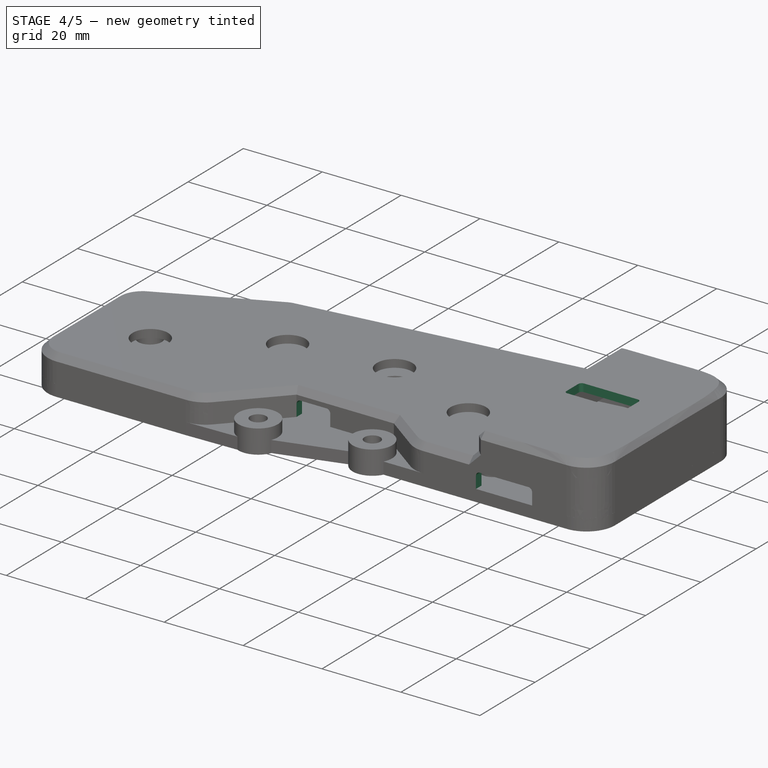
[diagram: stage 4 of 5 — iso view after this stage's code; geometry added in this stage tinted green]
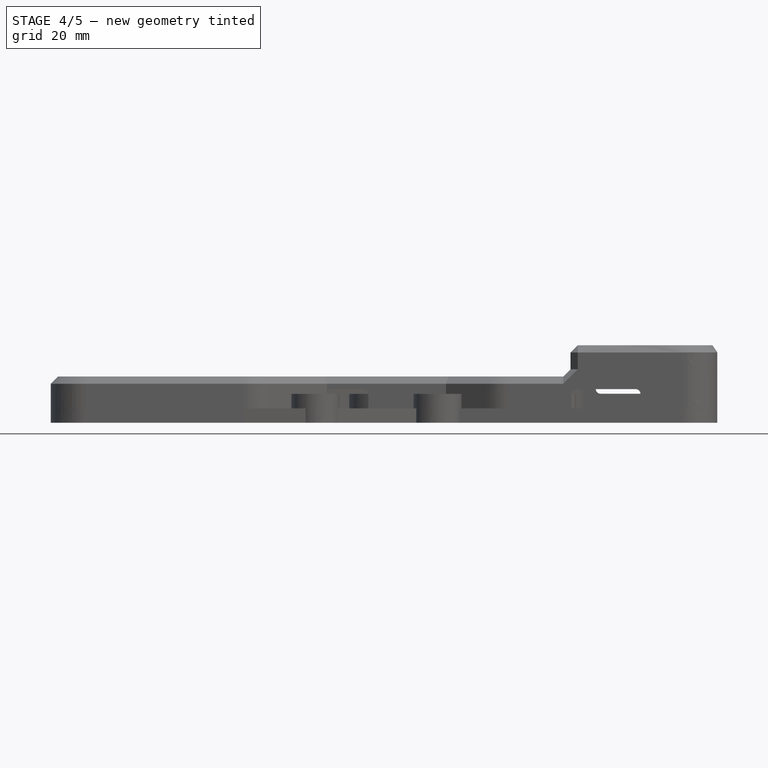
[diagram: stage 4 of 5 — front view after this stage's code; geometry added in this stage tinted green]
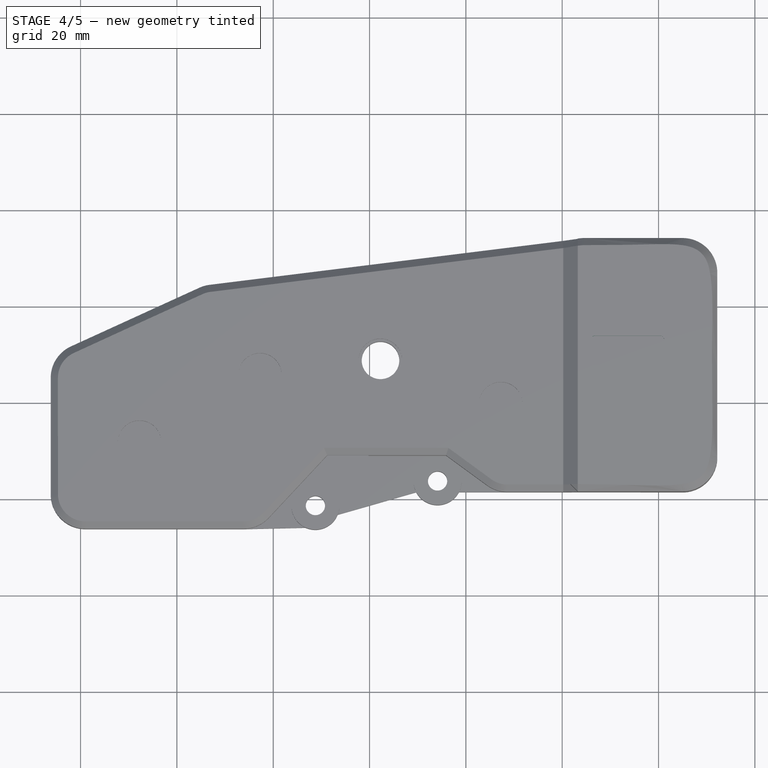
[diagram: stage 4 of 5 — top view after this stage's code; geometry added in this stage tinted green]
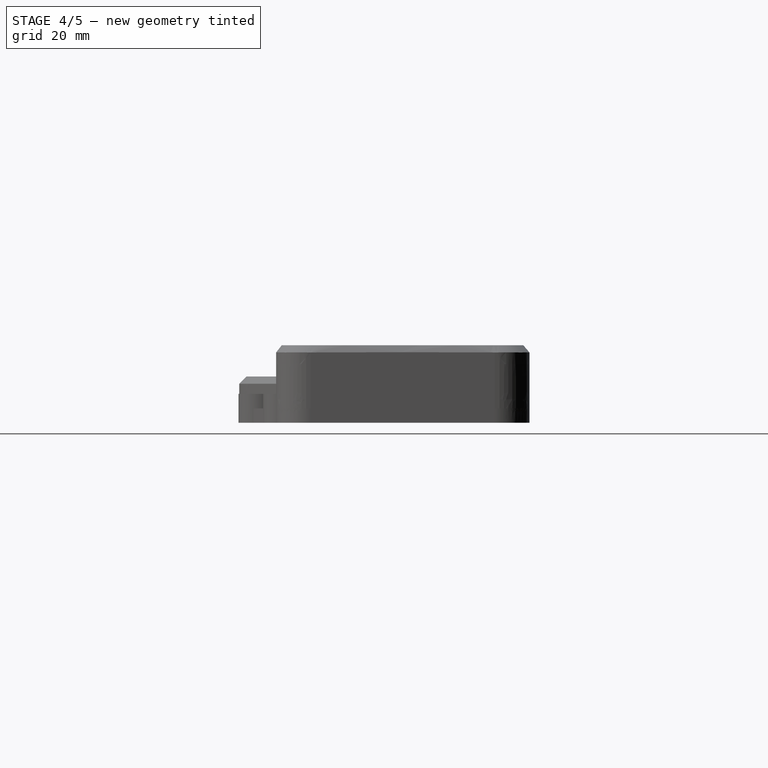
[diagram: stage 4 of 5 — right view after this stage's code; geometry added in this stage tinted green]
FEATURE [Sketcher::SketchObject] Sketch019
  ArcFitTolerance = 1e-06
  AttachmentSupport = -> [Pocket006]
  FullyConstrained = false
  MakeInternals = false
  MapMode = 5
  Placement = pos=(-1.26,49.11,16.1) rot=(0,0,1;0rad)
  sketch-geometry (12):
    g0: LineSegment StartX=107.189 StartY=-16.217 StartZ=0 EndX=107.189 EndY=-20.5952 EndZ=0
    g1: LineSegment StartX=107.91 StartY=-21.3163 StartZ=0 EndX=121.725 EndY=-21.3163 EndZ=0
    g2: LineSegment StartX=122.447 StartY=-20.5952 StartZ=0 EndX=122.447 EndY=-16.217 EndZ=0
    g3: LineSegment StartX=121.607 StartY=-15.377 StartZ=0 EndX=108.029 EndY=-15.377 EndZ=0
    g4: ArcOfCircle CenterX=108.029 CenterY=-16.217 CenterZ=0 NormalX=0 NormalY=0 NormalZ=1 AngleXU=0 Radius=0.839941 StartAngle=1.5708 EndAngle=3.14159
    g5: GeomPoint [constr] X=107.189 Y=-15.377 Z=0
    g6: ArcOfCircle CenterX=121.607 CenterY=-16.217 CenterZ=0 NormalX=0 NormalY=0 NormalZ=1 AngleXU=0 Radius=0.839941 StartAngle=0 EndAngle=1.5708
    g7: GeomPoint [constr] X=122.447 Y=-15.377 Z=0
    g8: ArcOfCircle CenterX=121.725 CenterY=-20.5952 CenterZ=0 NormalX=0 NormalY=0 NormalZ=1 AngleXU=0 Radius=0.721155 StartAngle=4.71239 EndAngle=6.28319
    g9: GeomPoint [constr] X=122.447 Y=-21.3163 Z=0
    g10: ArcOfCircle CenterX=107.91 CenterY=-20.5952 CenterZ=0 NormalX=0 NormalY=0 NormalZ=1 AngleXU=0 Radius=0.721155 StartAngle=3.14159 EndAngle=4.71239
    g11: GeomPoint [constr] X=107.189 Y=-21.3163 Z=0
  constraints (20):
    c: Vertical(g0)
    c: Vertical(g2)
    c: Horizontal(g1)
    c: Horizontal(g3)
    c: PointOnObject(g5,g0)
    c: PointOnObject(g5,g3)
    c: Tangent(g0,g4) = -1.5708
    c: Tangent(g3,g4) = -1.5708
    c: PointOnObject(g7,g2)
    c: PointOnObject(g7,g3)
    c: Tangent(g2,g6) = -1.5708
    c: Tangent(g3,g6) = -1.5708
    c: PointOnObject(g9,g1)
    c: PointOnObject(g9,g2)
    c: Tangent(g1,g8) = -1.5708
    c: Tangent(g2,g8) = -1.5708
    c: PointOnObject(g11,g0)
    c: PointOnObject(g11,g1)
    c: Tangent(g0,g10) = -1.5708
    c: Tangent(g1,g10) = -1.5708
FEATURE [PartDesign::Pocket] Pocket007
  BaseFeature = -> Pocket006
  Direction = (0,0,-1)
  Length = 2
  Length2 = 5
  Placement = pos=(-1.26,49.11,0) rot=(0,0,1;0rad)
  Profile = -> Sketch019
  ReferenceAxis = -> Sketch019 [N_Axis]
  Refine = true
  Suppressed = false
  Type = 0
FEATURE [Sketcher::SketchObject] Sketch020
  ArcFitTolerance = 1e-06
  AttachmentSupport = -> [Pocket007]
  FullyConstrained = false
  MakeInternals = false
  MapMode = 5
  Placement = pos=(-1.26,4.93945,0) rot=(0,0.707107,0.707107;3.14159rad)
  sketch-geometry (12):
    g0: LineSegment StartX=-121.221 StartY=12.4119 StartZ=0 EndX=-121.221 EndY=7.00198 EndZ=0
    g1: LineSegment StartX=-120.253 StartY=6.03403 StartZ=0 EndX=-109.224 EndY=6.03403 EndZ=0
    g2: LineSegment StartX=-108.221 StartY=7.03711 StartZ=0 EndX=-108.221 EndY=12.5348 EndZ=0
    g3: LineSegment StartX=-109.221 StartY=13.534 StartZ=0 EndX=-120.099 EndY=13.534 EndZ=0
    g4: ArcOfCircle CenterX=-120.099 CenterY=12.4119 CenterZ=0 NormalX=0 NormalY=0 NormalZ=1 AngleXU=0 Radius=1.12213 StartAngle=1.5708 EndAngle=3.14159
    g5: GeomPoint [constr] X=-121.221 Y=13.534 Z=0
    g6: ArcOfCircle CenterX=-109.221 CenterY=12.5348 CenterZ=0 NormalX=0 NormalY=0 NormalZ=1 AngleXU=0 Radius=0.999189 StartAngle=0 EndAngle=1.5708
    g7: GeomPoint [constr] X=-108.221 Y=13.534 Z=0
    g8: ArcOfCircle CenterX=-109.224 CenterY=7.03711 CenterZ=0 NormalX=0 NormalY=0 NormalZ=1 AngleXU=0 Radius=1.00308 StartAngle=4.71239 EndAngle=6.28319
    g9: GeomPoint [constr] X=-108.221 Y=6.03403 Z=0
    g10: ArcOfCircle CenterX=-120.253 CenterY=7.00198 CenterZ=0 NormalX=0 NormalY=0 NormalZ=1 AngleXU=0 Radius=0.967953 StartAngle=3.14159 EndAngle=4.71239
    g11: GeomPoint [constr] X=-121.221 Y=6.03403 Z=0
  constraints (22):
    c: Vertical(g0)
    c: Vertical(g2)
    c: Horizontal(g1)
    c: Horizontal(g3)
    c: Distance(g5,g7) = 13
    c: Distance(g11,g5) = 7.5
    c: PointOnObject(g5,g0)
    c: PointOnObject(g5,g3)
    c: Tangent(g0,g4) = -1.5708
    c: Tangent(g3,g4) = -1.5708
    c: PointOnObject(g7,g2)
    c: PointOnObject(g7,g3)
    c: Tangent(g2,g6) = -1.5708
    c: Tangent(g3,g6) = -1.5708
    c: PointOnObject(g9,g1)
    c: PointOnObject(g9,g2)
    c: Tangent(g1,g8) = -1.5708
    c: Tangent(g2,g8) = -1.5708
    c: PointOnObject(g11,g0)
    c: PointOnObject(g11,g1)
    c: Tangent(g0,g10) = -1.5708
    c: Tangent(g1,g10) = -1.5708
FEATURE [PartDesign::Pocket] Pocket008
  BaseFeature = -> Pocket007
  Direction = (0,-1,2e-16)
  Length = 0
  Length2 = 5
  Placement = pos=(-1.26,49.11,0) rot=(0,0,1;0rad)
  Profile = -> Sketch020
  ReferenceAxis = -> Sketch020 [N_Axis]
  Refine = true
  Suppressed = false
  Type = 3
  UpToFace = -> Pocket007 [Face2]
FEATURE [Sketcher::SketchObject] Sketch021
  ArcFitTolerance = 1e-06
  AttachmentSupport = -> [Pocket008]
  ExternalGeometry = -> [Pocket008]
  FullyConstrained = false
  MakeInternals = false
  MapMode = 5
  Placement = pos=(-1.26,-47.6602,0) rot=(1,0,0;1.5708rad)
  sketch-geometry (8):
    g0: LineSegment StartX=103.245 StartY=1.07e-14 StartZ=0 EndX=117.498 EndY=1.07e-14 EndZ=0
    g1: LineSegment StartX=117.498 StartY=1.07e-14 StartZ=0 EndX=117.498 EndY=5.99514 EndZ=0
    g2: LineSegment StartX=116.511 StartY=6.98264 StartZ=0 EndX=104.233 EndY=6.98264 EndZ=0
    g3: LineSegment StartX=103.245 StartY=5.99514 StartZ=0 EndX=103.245 EndY=1.07e-14 EndZ=0
    g4: ArcOfCircle CenterX=104.233 CenterY=5.99514 CenterZ=0 NormalX=0 NormalY=0 NormalZ=1 AngleXU=0 Radius=0.987494 StartAngle=1.5708 EndAngle=3.14159
    g5: GeomPoint [constr] X=103.245 Y=6.98264 Z=0
    g6: ArcOfCircle CenterX=116.511 CenterY=5.99514 CenterZ=0 NormalX=0 NormalY=0 NormalZ=1 AngleXU=0 Radius=0.987494 StartAngle=0 EndAngle=1.5708
    g7: GeomPoint [constr] X=117.498 Y=6.98264 Z=0
  constraints (15):
    c: Coincident(g0,g1)
    c: Coincident(g3,g0)
    c: Horizontal(g0)
    c: Horizontal(g2)
    c: Vertical(g1)
    c: Vertical(g3)
    c: PointOnObject(g0,g-3)
    c: PointOnObject(g5,g2)
    c: PointOnObject(g5,g3)
    c: Tangent(g2,g4) = -1.5708
    c: Tangent(g3,g4) = -1.5708
    c: PointOnObject(g7,g1)
    c: PointOnObject(g7,g2)
    c: Tangent(g1,g6) = -1.5708
    c: Tangent(g2,g6) = -1.5708
FEATURE [PartDesign::Pocket] Pocket009
  BaseFeature = -> Pocket008
  Direction = (0,1,-2e-16)
  Length = 60
  Length2 = 5
  Placement = pos=(-1.26,49.11,0) rot=(0,0,1;0rad)
  Profile = -> Sketch021
  ReferenceAxis = -> Sketch021 [N_Axis]
  Refine = true
  Suppressed = false
  Type = 0
FEATURE [Sketcher::SketchObject] Sketch022
  ArcFitTolerance = 1e-06
  AttachmentSupport = -> [Pocket009]
  ExternalGeometry = -> [Pocket009]
  FullyConstrained = false
  MakeInternals = false
  MapMode = 5
  Placement = pos=(-1.26,-40.0586,0) rot=(1,0,0;1.5708rad)
  sketch-geometry (8):
    g0: LineSegment StartX=52.4512 StartY=1.07e-14 StartZ=0 EndX=61.0054 EndY=1.07e-14 EndZ=0
    g1: LineSegment StartX=61.0054 StartY=1.07e-14 StartZ=0 EndX=61.0054 EndY=6.00584 EndZ=0
    g2: LineSegment StartX=60.0161 StartY=6.9951 StartZ=0 EndX=53.4404 EndY=6.9951 EndZ=0
    g3: LineSegment StartX=52.4512 StartY=6.00584 StartZ=0 EndX=52.4512 EndY=1.07e-14 EndZ=0
    g4: ArcOfCircle CenterX=53.4404 CenterY=6.00584 CenterZ=0 NormalX=0 NormalY=0 NormalZ=1 AngleXU=0 Radius=0.989257 StartAngle=1.5708 EndAngle=3.14159
    g5: GeomPoint [constr] X=52.4512 Y=6.9951 Z=0
    g6: ArcOfCircle CenterX=60.0161 CenterY=6.00584 CenterZ=0 NormalX=0 NormalY=0 NormalZ=1 AngleXU=0 Radius=0.989257 StartAngle=0 EndAngle=1.5708
    g7: GeomPoint [constr] X=61.0054 Y=6.9951 Z=0
  constraints (15):
    c: Coincident(g0,g1)
    c: Coincident(g3,g0)
    c: Horizontal(g0)
    c: Horizontal(g2)
    c: Vertical(g1)
    c: Vertical(g3)
    c: Coincident(g0,g-3)
    c: PointOnObject(g5,g2)
    c: PointOnObject(g5,g3)
    c: Tangent(g2,g4) = -1.5708
    c: Tangent(g3,g4) = -1.5708
    c: PointOnObject(g7,g1)
    c: PointOnObject(g7,g2)
    c: Tangent(g1,g6) = -1.5708
    c: Tangent(g2,g6) = -1.5708
FEATURE [PartDesign::Pocket] Pocket010
  BaseFeature = -> Pocket009
  Direction = (0,1,-2e-16)
  Length = 0
  Length2 = 5
  Placement = pos=(-1.26,49.11,0) rot=(0,0,1;0rad)
  Profile = -> Sketch022
  ReferenceAxis = -> Sketch022 [N_Axis]
  Refine = true
  Suppressed = false
  Type = 3
  UpToFace = -> Pocket009 [Face42]
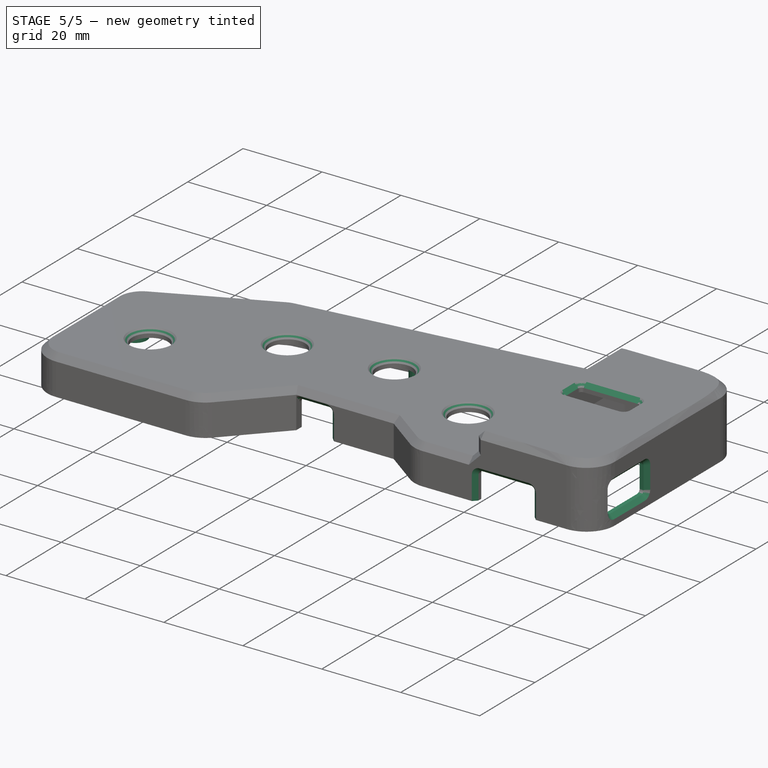
[diagram: stage 5 of 5 — iso view after this stage's code; geometry added in this stage tinted green]
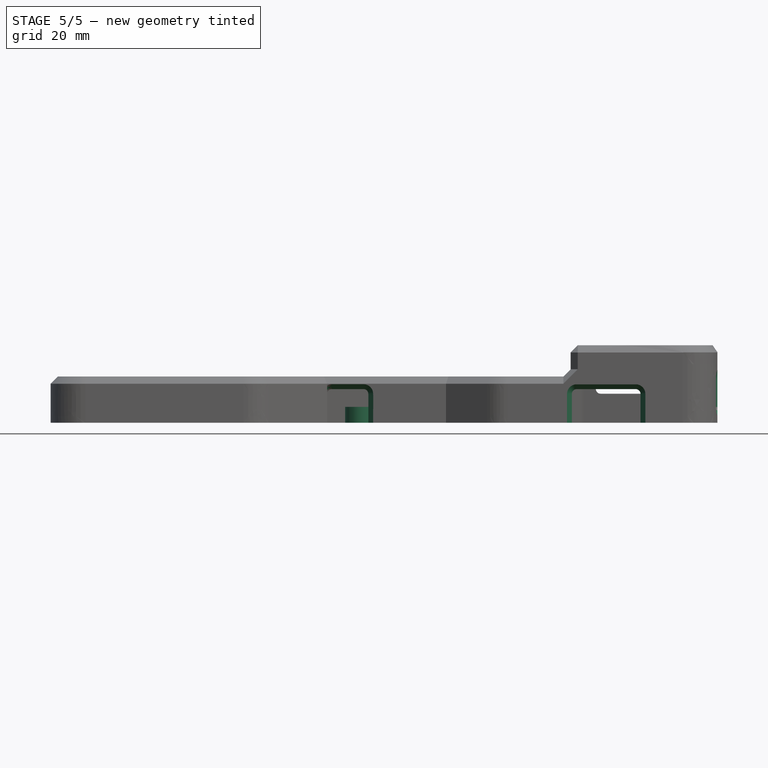
[diagram: stage 5 of 5 — front view after this stage's code; geometry added in this stage tinted green]
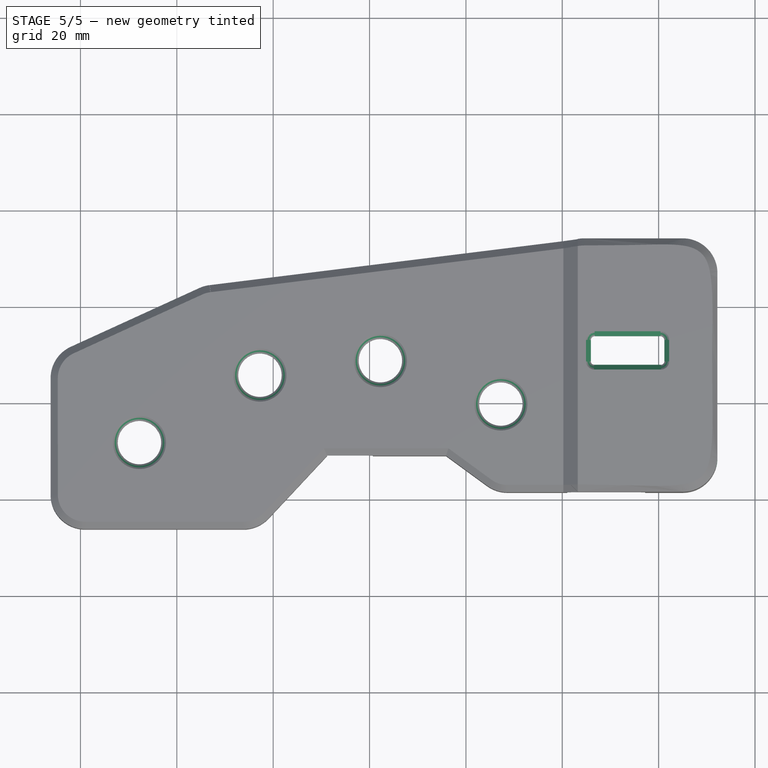
[diagram: stage 5 of 5 — top view after this stage's code; geometry added in this stage tinted green]
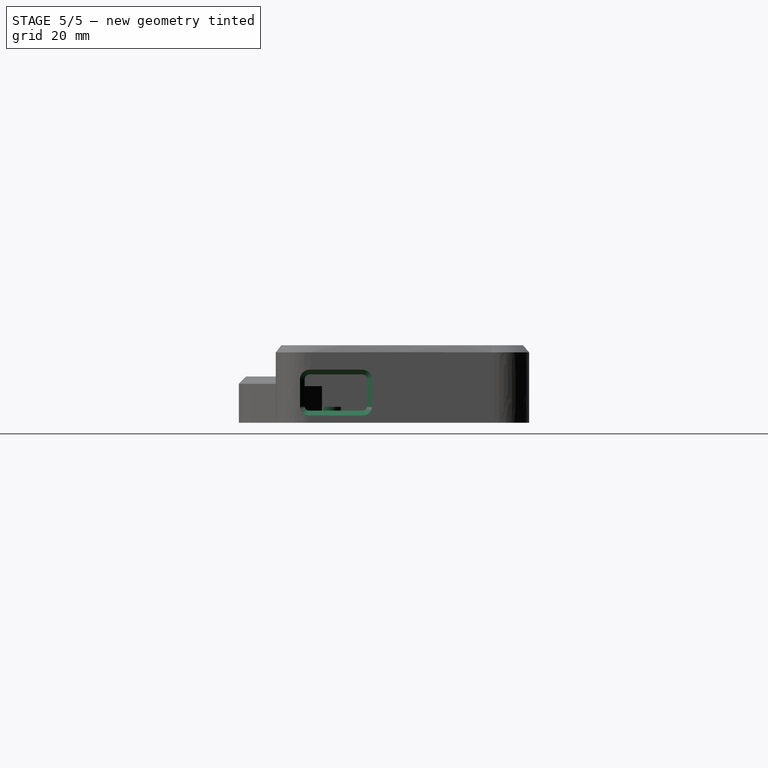
[diagram: stage 5 of 5 — right view after this stage's code; geometry added in this stage tinted green]
FEATURE [PartDesign::SubShapeBinder] Binder004
  BindCopyOnChange = 0
  BindMode = 0
  ClaimChildren = false
  Context = -> Part001 [Body.Binder004.]
  Fuse = false
  MakeFace = true
  OffsetFill = false
  OffsetIntersection = false
  OffsetJoinType = 0
  OffsetOpenResult = false
  PartialLoad = false
  Refine = true
  Relative = true
  Support = -> [Body002[Chamfer.Edge107,Chamfer.Edge111,Chamfer.Edge101,Chamfer.Edge104,Chamfer.Edge105,Chamfer.Edge102]]
  _Version = 2
FEATURE [Sketcher::SketchObject] Sketch023
  ArcFitTolerance = 1e-06
  AttachmentSupport = -> [Pocket010]
  ExternalGeometry = -> [Binder004]
  FullyConstrained = true
  MakeInternals = false
  MapMode = 5
  Placement = pos=(-1.26,49.11,0) rot=(1,0,0;3.14159rad)
  sketch-geometry (6):
    g0: Circle CenterX=-0.401351 CenterY=51.3041 CenterZ=0 NormalX=0 NormalY=0 NormalZ=1 AngleXU=0 Radius=3
    g1: Circle CenterX=-1.25 CenterY=21.7456 CenterZ=0 NormalX=0 NormalY=0 NormalZ=1 AngleXU=0 Radius=3
    g2: Circle CenterX=70.6056 CenterY=37.0515 CenterZ=0 NormalX=0 NormalY=0 NormalZ=1 AngleXU=0 Radius=3
    g3: Circle CenterX=59.184 CenterY=3.84518 CenterZ=0 NormalX=0 NormalY=0 NormalZ=1 AngleXU=0 Radius=3
    g4: Circle CenterX=129.376 CenterY=-0.445641 CenterZ=0 NormalX=0 NormalY=0 NormalZ=1 AngleXU=0 Radius=3
    g5: Circle CenterX=127.04 CenterY=44.5215 CenterZ=0 NormalX=0 NormalY=0 NormalZ=1 AngleXU=0 Radius=3
  constraints (12):
    c: Diameter(g0) = 6
    c: Coincident(g0,g-8)
    c: Diameter(g1) = 6
    c: Coincident(g1,g-7)
    c: Diameter(g2) = 6
    c: Coincident(g2,g-3)
    c: Diameter(g3) = 6
    c: Coincident(g3,g-6)
    c: Diameter(g4) = 6
    c: Coincident(g4,g-5)
    c: Diameter(g5) = 6
    c: Coincident(g5,g-4)
FEATURE [PartDesign::Pad] Pad004
  BaseFeature = -> Pocket010
  Direction = (0,0,-1)
  Length = 3.3
  Length2 = 10
  Placement = pos=(-1.26,49.11,0) rot=(0,0,1;0rad)
  Profile = -> Sketch023
  ReferenceAxis = -> Sketch023 [N_Axis]
  Refine = true
  Reversed = true
  Suppressed = false
  Type = 0
FEATURE [Sketcher::SketchObject] Sketch025
  ArcFitTolerance = 1e-06
  AttachmentSupport = -> [Pad004]
  ExternalGeometry = -> [Pad004]
  FullyConstrained = true
  MakeInternals = false
  MapMode = 5
  Placement = pos=(-1.26,49.11,0) rot=(1,0,0;3.14159rad)
  sketch-geometry (6):
    g0: Circle CenterX=-0.401351 CenterY=51.3041 CenterZ=0 NormalX=0 NormalY=0 NormalZ=1 AngleXU=0 Radius=1.65
    g1: Circle CenterX=-1.25 CenterY=21.7456 CenterZ=0 NormalX=0 NormalY=0 NormalZ=1 AngleXU=0 Radius=1.65
    g2: Circle CenterX=70.6056 CenterY=37.0515 CenterZ=0 NormalX=0 NormalY=0 NormalZ=1 AngleXU=0 Radius=1.65
    g3: Circle CenterX=59.184 CenterY=3.84518 CenterZ=0 NormalX=0 NormalY=0 NormalZ=1 AngleXU=0 Radius=1.65
    g4: Circle CenterX=127.04 CenterY=44.5215 CenterZ=0 NormalX=0 NormalY=0 NormalZ=1 AngleXU=0 Radius=1.65
    g5: Circle CenterX=129.376 CenterY=-0.445641 CenterZ=0 NormalX=0 NormalY=0 NormalZ=1 AngleXU=0 Radius=1.65
  constraints (12):
    c: Diameter(g0) = 3.3
    c: Coincident(g0,g-8)
    c: Diameter(g1) = 3.3
    c: Coincident(g1,g-7)
    c: Diameter(g2) = 3.3
    c: Coincident(g2,g-6)
    c: Diameter(g3) = 3.3
    c: Coincident(g3,g-5)
    c: Diameter(g4) = 3.3
    c: Coincident(g4,g-3)
    c: Diameter(g5) = 3.3
    c: Coincident(g5,g-4)
FEATURE [PartDesign::Pocket] Pocket011
  BaseFeature = -> Pad004
  Direction = (0,0,1)
  Length = 3.3
  Length2 = 5
  Placement = pos=(-1.26,49.11,0) rot=(0,0,1;0rad)
  Profile = -> Sketch025
  ReferenceAxis = -> Sketch025 [N_Axis]
  Refine = true
  Suppressed = false
  Type = 0
FEATURE [Sketcher::SketchObject] Sketch026
  ArcFitTolerance = 1e-06
  AttachmentSupport = -> [Pocket011]
  FullyConstrained = false
  MakeInternals = false
  MapMode = 5
  Placement = pos=(133.459,49.11,0) rot=(0.57735,0.57735,0.57735;2.0944rad)
  sketch-geometry (12):
    g0: LineSegment StartX=-41.6583 StartY=8.97458 StartZ=0 EndX=-41.6583 EndY=3.4459 EndZ=0
    g1: LineSegment StartX=-40.7476 StartY=2.53524 StartZ=0 EndX=-29.569 EndY=2.53524 EndZ=0
    g2: LineSegment StartX=-28.6583 StartY=3.4459 StartZ=0 EndX=-28.6583 EndY=8.97458 EndZ=0
    g3: LineSegment StartX=-29.719 StartY=10.0352 StartZ=0 EndX=-40.5976 EndY=10.0352 EndZ=0
    g4: ArcOfCircle CenterX=-40.5976 CenterY=8.97458 CenterZ=0 NormalX=0 NormalY=0 NormalZ=1 AngleXU=0 Radius=1.06066 StartAngle=1.5708 EndAngle=3.14159
    g5: GeomPoint [constr] X=-41.6583 Y=10.0352 Z=0
    g6: ArcOfCircle CenterX=-29.719 CenterY=8.97458 CenterZ=0 NormalX=0 NormalY=0 NormalZ=1 AngleXU=0 Radius=1.06066 StartAngle=0 EndAngle=1.5708
    g7: GeomPoint [constr] X=-28.6583 Y=10.0352 Z=0
    g8: ArcOfCircle CenterX=-29.569 CenterY=3.4459 CenterZ=0 NormalX=0 NormalY=0 NormalZ=1 AngleXU=0 Radius=0.91066 StartAngle=4.71239 EndAngle=6.28319
    g9: GeomPoint [constr] X=-28.6583 Y=2.53524 Z=0
    g10: ArcOfCircle CenterX=-40.7476 CenterY=3.4459 CenterZ=0 NormalX=0 NormalY=0 NormalZ=1 AngleXU=0 Radius=0.91066 StartAngle=3.14159 EndAngle=4.71239
    g11: GeomPoint [constr] X=-41.6583 Y=2.53524 Z=0
  constraints (22):
    c: Vertical(g0)
    c: Vertical(g2)
    c: Horizontal(g1)
    c: Horizontal(g3)
    c: Distance(g5,g7) = 13
    c: Distance(g11,g5) = 7.5
    c: PointOnObject(g5,g0)
    c: PointOnObject(g5,g3)
    c: Tangent(g0,g4) = -1.5708
    c: Tangent(g3,g4) = -1.5708
    c: PointOnObject(g7,g2)
    c: PointOnObject(g7,g3)
    c: Tangent(g2,g6) = -1.5708
    c: Tangent(g3,g6) = -1.5708
    c: PointOnObject(g9,g1)
    c: PointOnObject(g9,g2)
    c: Tangent(g1,g8) = -1.5708
    c: Tangent(g2,g8) = -1.5708
    c: PointOnObject(g11,g0)
    c: PointOnObject(g11,g1)
    c: Tangent(g0,g10) = -1.5708
    c: Tangent(g1,g10) = -1.5708
FEATURE [PartDesign::Pocket] Pocket012
  BaseFeature = -> Pocket011
  Direction = (-1,0,0)
  Length = 4
  Length2 = 5
  Placement = pos=(-1.26,49.11,0) rot=(0,0,1;0rad)
  Profile = -> Sketch026
  ReferenceAxis = -> Sketch026 [N_Axis]
  Refine = true
  Suppressed = false
  Type = 0
FEATURE [PartDesign::Chamfer] Chamfer002
  Angle = 45
  Base = -> Pocket012 [Edge271,Edge275,Edge277,Edge273,Edge381,Edge134,Edge98,Edge118,Edge417]
  BaseFeature = -> Pocket012
  ChamferType = 0
  FlipDirection = false
  Placement = pos=(-1.26,49.11,0) rot=(0,0,1;0rad)
  Refine = true
  Size = 1
  Size2 = 1
  SupportTransform = false
  Suppressed = false
  UseAllEdges = false
FEATURE [PartDesign::Body] Body  label="top"
  AllowCompound = false
  Group = -> [Pad001,Sketch009,Sketch015,Pocket,Sketch016,Pocket004,Sketch017,Pocket005,Chamfer001,Binder002,Sketch018,Pocket006,Sketch019,Pocket007,Sketch020,Pocket008,Sketch021,Pocket009,Sketch022,Pocket010,Binder004,Sketch023,Pad004,Sketch025,Pocket011,Sketch026,Pocket012,Chamfer002]
  Origin = -> Origin084
  Placement = pos=(0,0,-4.6) rot=(0,0,1;0rad)
  Tip = -> Chamfer002
FEATURE [App::Part] Part001  label="case"
  Group = -> [Body002,Body]
  Origin = -> Origin082
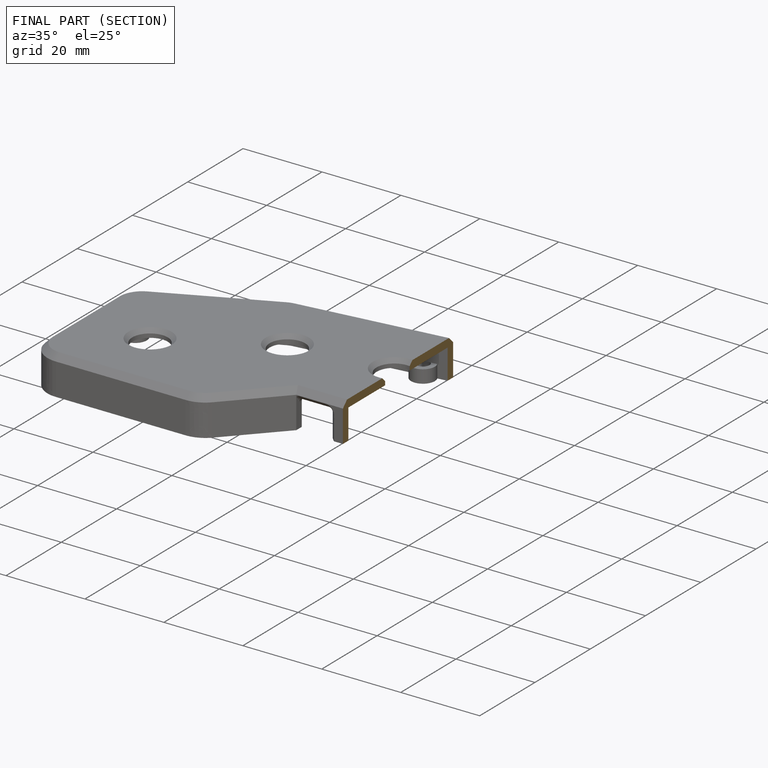
[diagram: finished part — half-section view (interior)]
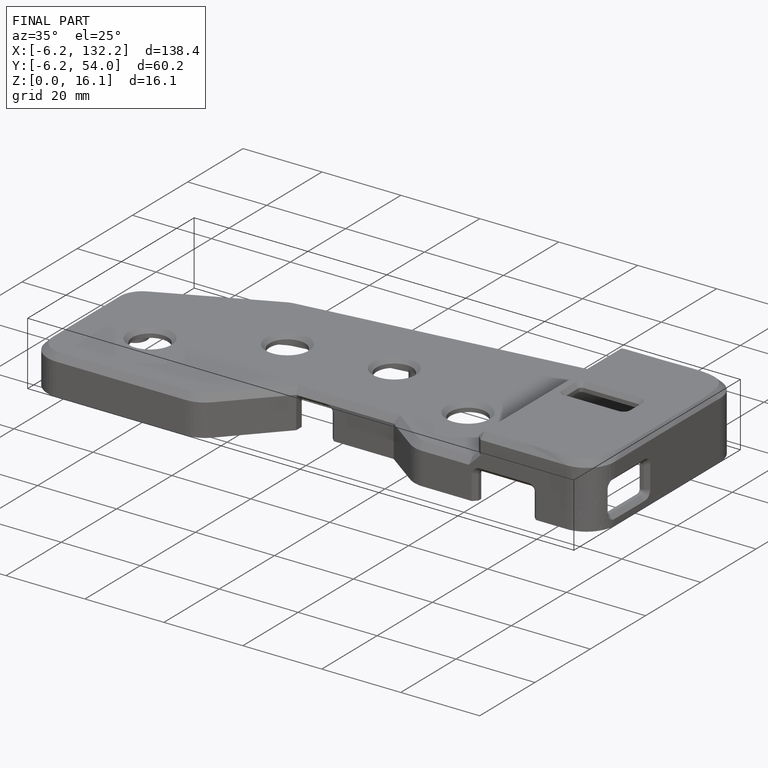
[diagram: finished part — iso view with bounding-box wireframe]
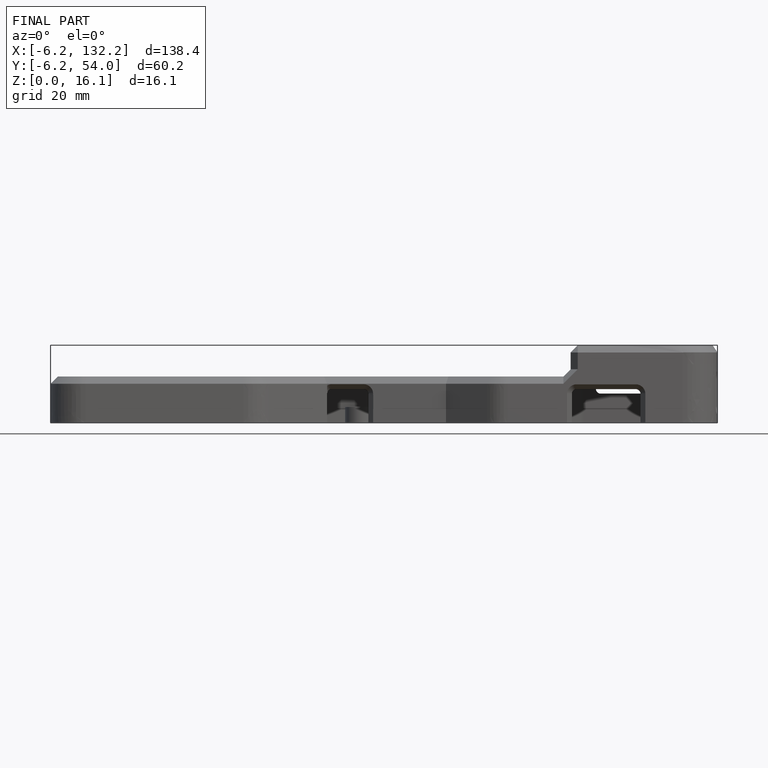
[diagram: finished part — front view with bounding-box wireframe]
